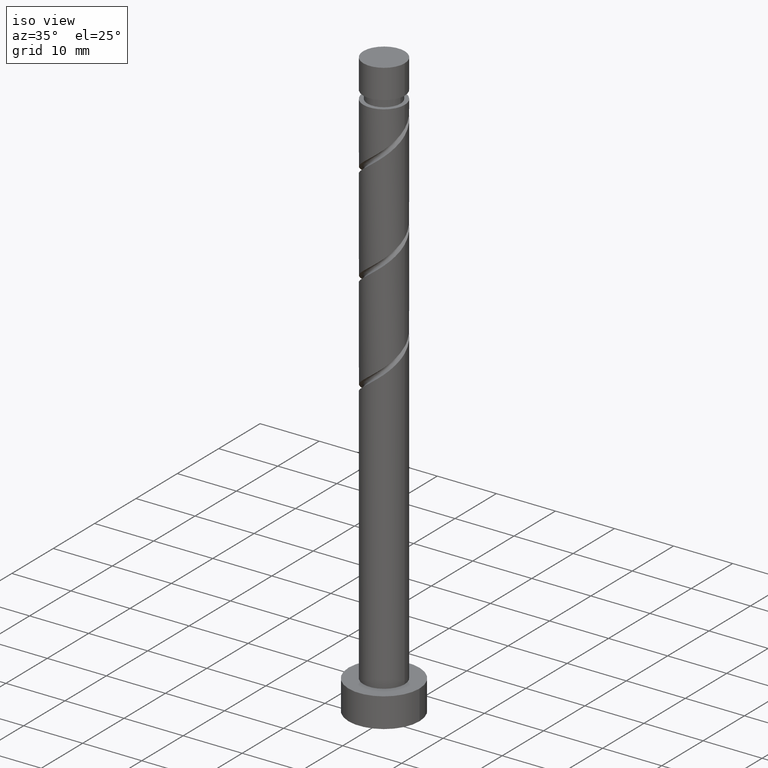
[diagram: clean part render]
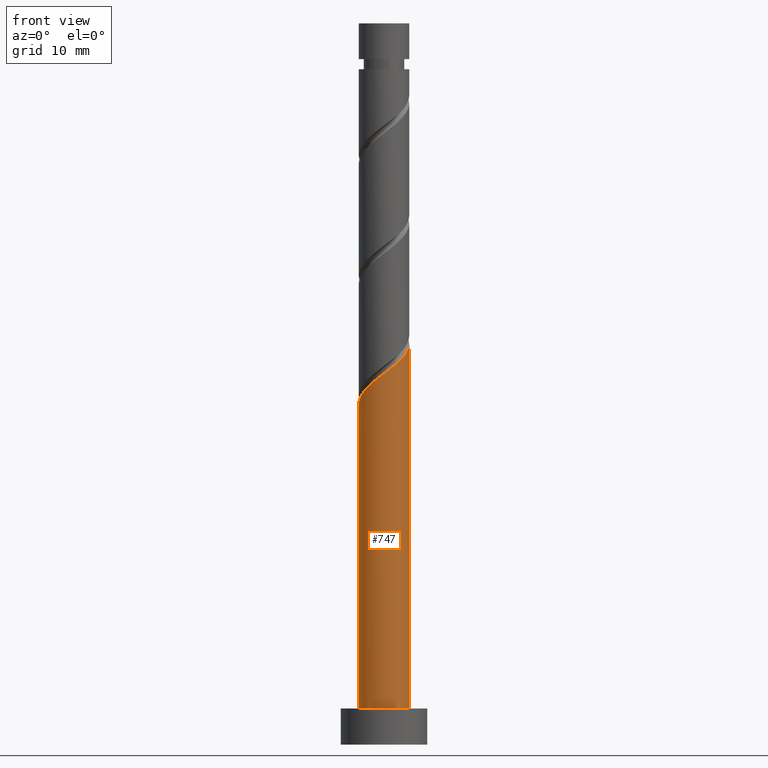
[diagram: tour spotlight — one face highlighted and labeled with its STEP entity id]
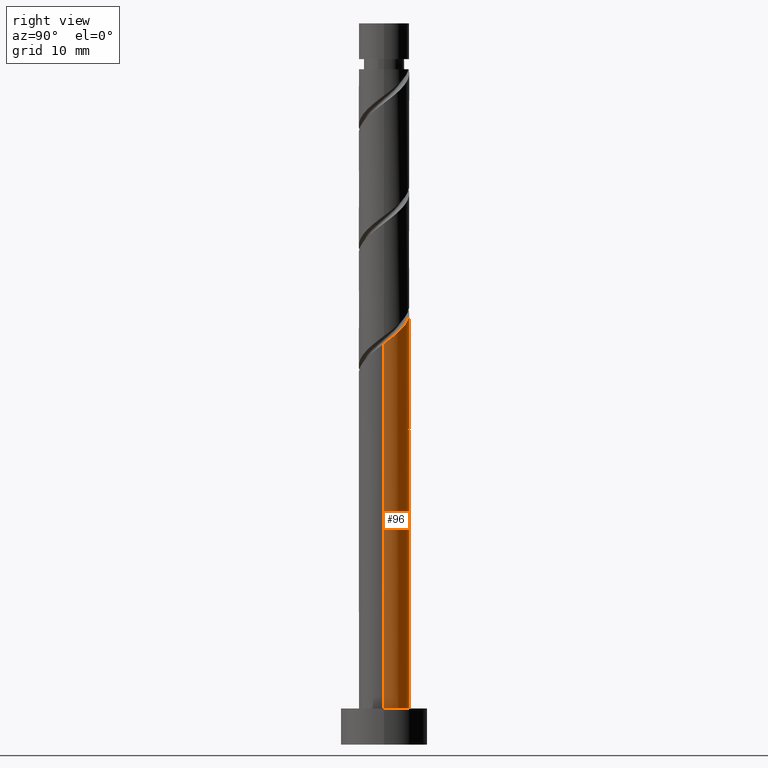
[diagram: tour spotlight — one face highlighted and labeled with its STEP entity id]
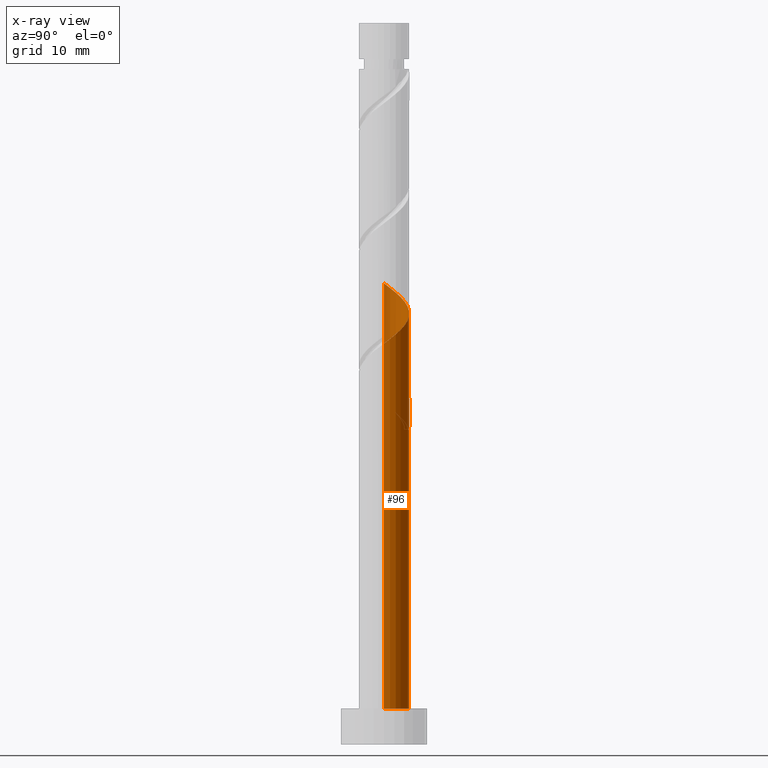
[diagram: x-ray of the same camera — body ghosted, this tour face saturated]
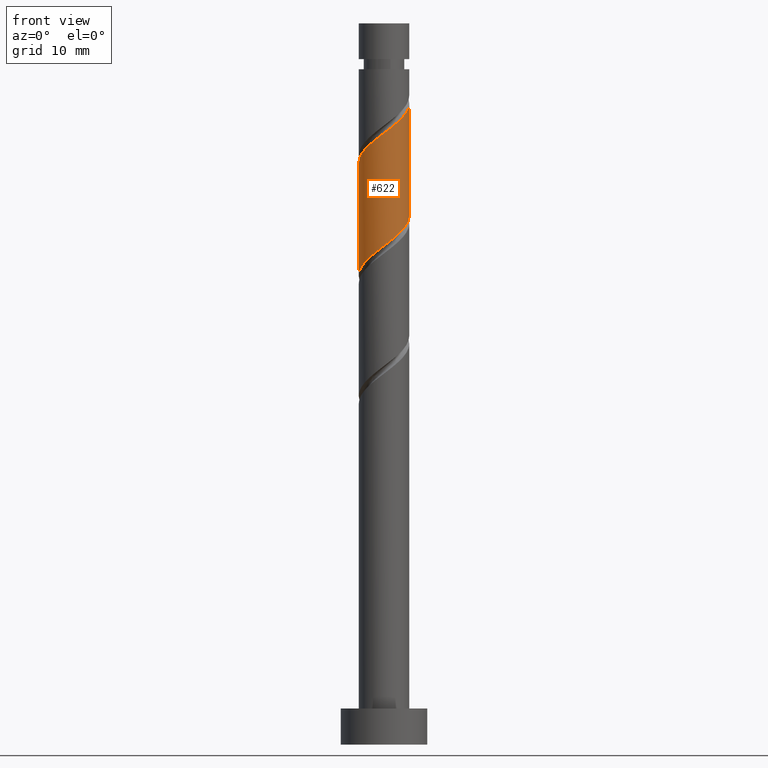
[diagram: tour spotlight — one face highlighted and labeled with its STEP entity id]
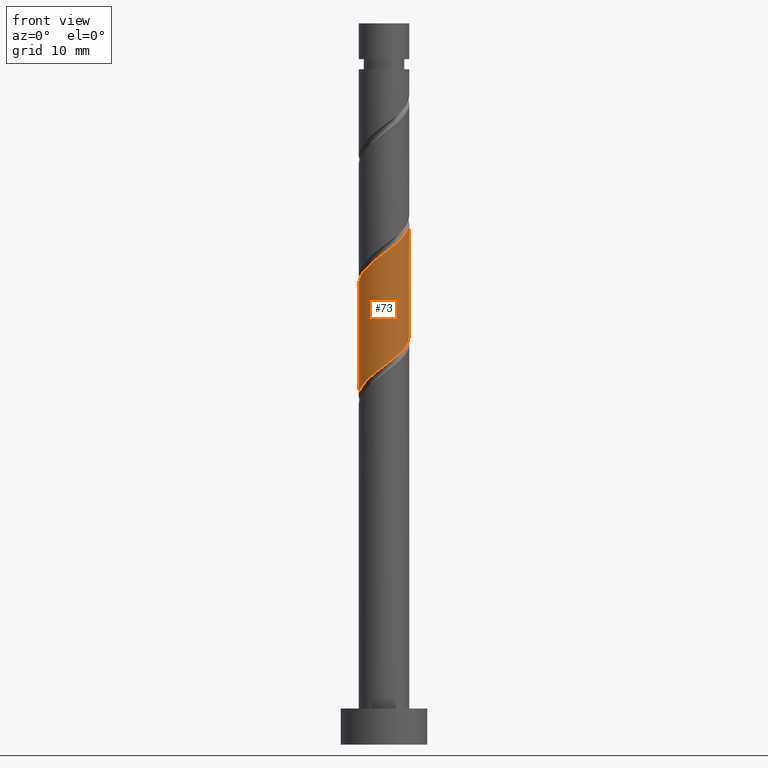
[diagram: tour spotlight — one face highlighted and labeled with its STEP entity id]
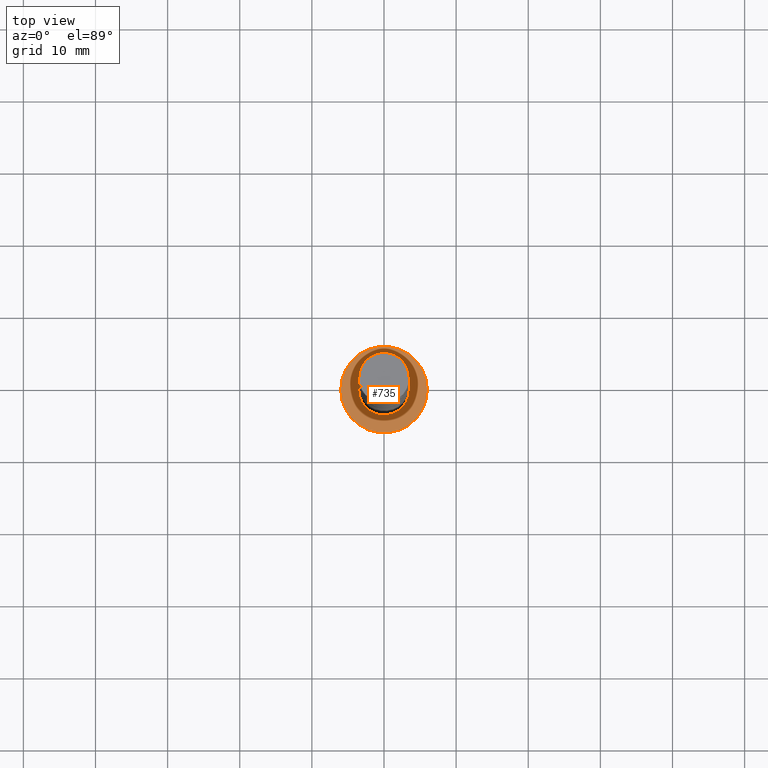
[diagram: tour spotlight — one face highlighted and labeled with its STEP entity id]
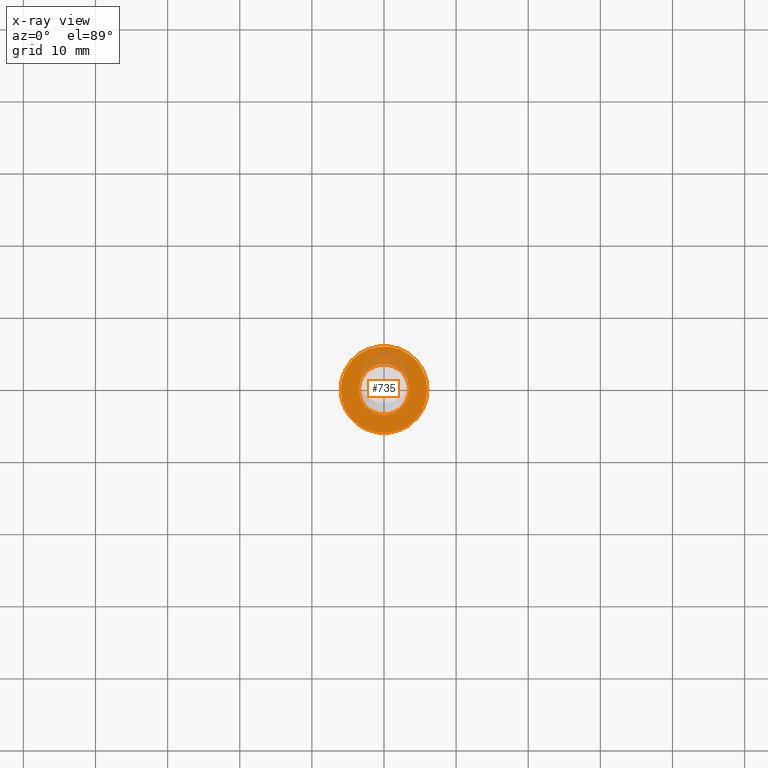
[diagram: x-ray of the same camera — body ghosted, this tour face saturated]
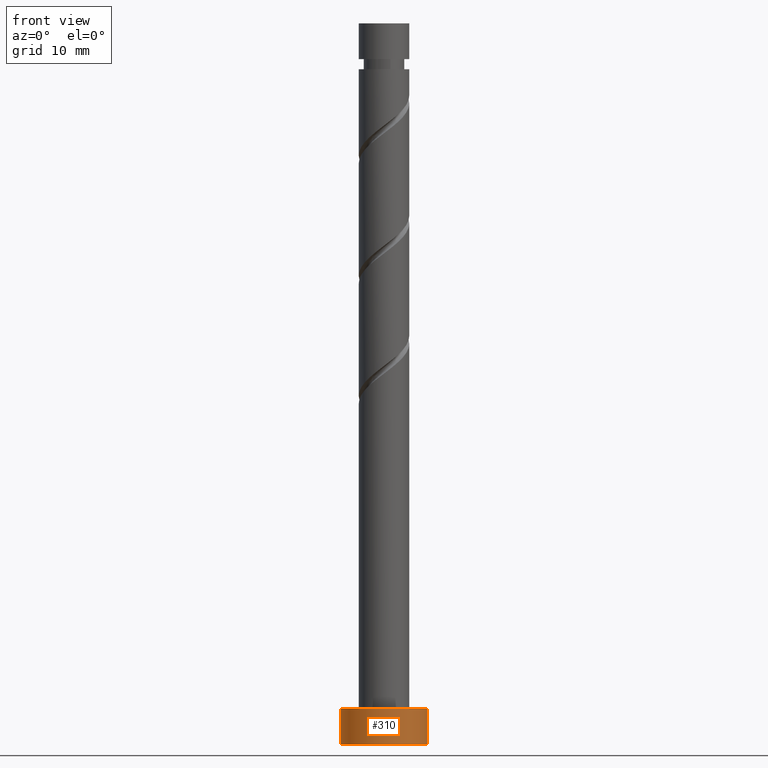
[diagram: tour spotlight — one face highlighted and labeled with its STEP entity id]
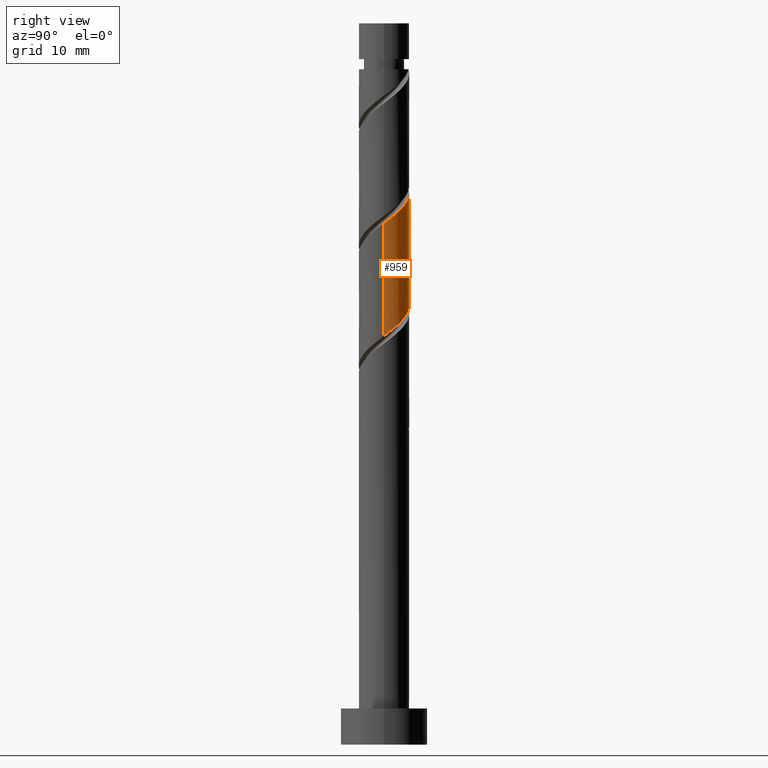
[diagram: tour spotlight — one face highlighted and labeled with its STEP entity id]
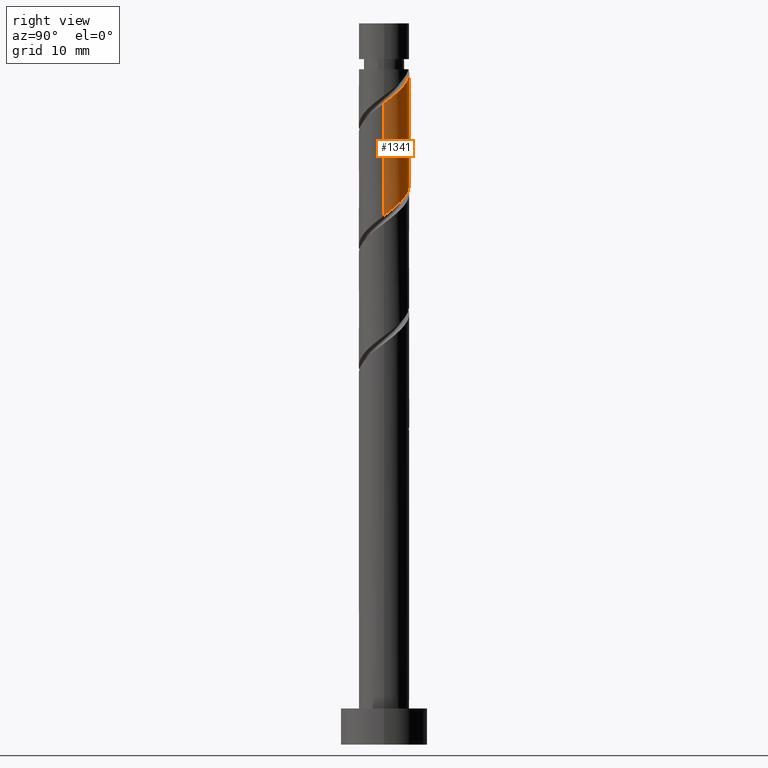
[diagram: tour spotlight — one face highlighted and labeled with its STEP entity id]
A machine part: a face-by-face anatomy tour. The part has 21 B-rep faces; the first image is the clean iso view, then the 8 largest visible faces are spotlighted one at a time (largest first), each with its STEP entity span.

Face 1 — front view, entity #747. In plain terms, the highlighted cylindrical surface (edge-blend (fillet) strip) has radius 3.5 mm, axis along (-0, -0, -1).
Definition (entity closure, byte-faithful):
#36 = DIRECTION ( 'NONE',  ( 1.000000000000000000, 0.000000000000000000, 0.000000000000000000 ) ) ;
#59 = CARTESIAN_POINT ( 'NONE',  ( 3.500000000000000000, 4.286263797015736595E-16, 5.000000000000000000 ) ) ;
#71 = CARTESIAN_POINT ( 'NONE',  ( -3.500000000000004441, 2.098924799838566833E-15, 47.28085234297711281 ) ) ;
#133 = CARTESIAN_POINT ( 'NONE',  ( 0.000000000000000000, 0.000000000000000000, 5.000000000000000000 ) ) ;
#142 = DIRECTION ( 'NONE',  ( -0.000000000000000000, -0.000000000000000000, -1.000000000000000000 ) ) ;
#179 = CYLINDRICAL_SURFACE ( 'NONE', #1176, 3.500000000000000000 ) ;
#194 = CARTESIAN_POINT ( 'NONE',  ( -1.671218283206728161, -3.075228357354227615, 50.12652204611401174 ) ) ;
#197 = CARTESIAN_POINT ( 'NONE',  ( -3.498835021510415366, -0.09029669015107097407, 47.34874426833622607 ) ) ;
#211 = CARTESIAN_POINT ( 'NONE',  ( 2.353940726802703498, -2.662673525845816069, 53.36726278685475933 ) ) ;
#244 = LINE ( 'NONE', #778, #951 ) ;
#294 = CARTESIAN_POINT ( 'NONE',  ( -3.500000000000000000, 0.000000000000000000, 5.000000000000000000 ) ) ;
#300 = CARTESIAN_POINT ( 'NONE',  ( -2.622221531993311316, -2.318179077886494799, 49.20059612018808792 ) ) ;
#305 = VERTEX_POINT ( 'NONE', #294 ) ;
#323 = ORIENTED_EDGE ( 'NONE', *, *, #392, .F. ) ;
#392 = EDGE_CURVE ( 'NONE', #713, #1012, #431, .T. ) ;
#403 = CARTESIAN_POINT ( 'NONE',  ( -3.500000000000004441, -0.04515586016207416564, 47.31486971690945609 ) ) ;
#413 = CARTESIAN_POINT ( 'NONE',  ( 0.09168966214459792208, -3.552810191439509602, 51.51541093500291879 ) ) ;
#420 = CARTESIAN_POINT ( 'NONE',  ( -3.482913278768110299, -0.7072357054910398677, 47.81170723129919509 ) ) ;
#427 = CARTESIAN_POINT ( 'NONE',  ( 3.500000000000005329, -0.5706903013716002615, 55.18426616394480533 ) ) ;
#431 =( BOUNDED_CURVE ( )  B_SPLINE_CURVE ( 2, ( #71, #403, #197, #420, #862, #1342, #300, #1231, #194, #1348, #1463, #413, #758, #888, #697, #211, #797, #1401, #670, #427, #909 ),
 .UNSPECIFIED., .F., .T. ) 
 B_SPLINE_CURVE_WITH_KNOTS ( ( 3, 2, 2, 2, 2, 2, 2, 2, 2, 2, 3 ),
 ( 0.05452480538552909733, 0.05555555555555558023, 0.06944444444444441977, 0.08333333333333337034, 0.09722222222222220989, 0.1111111111111111605, 0.1250000000000000000, 0.1388888888888888395, 0.1527777777777777901, 0.1666666666666666297, 0.1795248053855290904 ),
 .UNSPECIFIED. ) 
 CURVE ( )  GEOMETRIC_REPRESENTATION_ITEM ( )  RATIONAL_B_SPLINE_CURVE ( ( 0.9071930855141254746, 0.9080659294509730861, 0.9090909090909131685, 0.8952797754656475204, 0.9090909090909131685, 0.8952797754656475204, 0.9090909090909131685, 0.8952797754656475204, 0.9090909090909131685, 0.8952797754656475204, 0.9090909090909131685, 0.8952797754656475204, 0.9090909090909131685, 0.8952797754656475204, 0.9090909090909131685, 0.8952797754656475204, 0.9090909090909131685, 0.8952797754656475204, 0.9090909090909131685, 0.8963047551055876028, 0.9071930855141254746 ) ) 
 REPRESENTATION_ITEM ( '' )  );
#521 = DIRECTION ( 'NONE',  ( -1.000000000000000000, 0.000000000000000000, 0.000000000000000000 ) ) ;
#583 = EDGE_LOOP ( 'NONE', ( #771, #323, #1037, #803 ) ) ;
#592 = CARTESIAN_POINT ( 'NONE',  ( -3.500000000000004885, 2.098924799838566833E-15, 47.28085234297711281 ) ) ;
#643 = VERTEX_POINT ( 'NONE', #59 ) ;
#670 = CARTESIAN_POINT ( 'NONE',  ( 3.318712737967944637, -1.111820922113509802, 54.75615167574363795 ) ) ;
#689 = CARTESIAN_POINT ( 'NONE',  ( 3.500000000000004885, -2.106394283112013589E-15, 55.61418567631044851 ) ) ;
#697 = CARTESIAN_POINT ( 'NONE',  ( 1.827616738303687427, -2.984931667203157613, 52.90429982389177610 ) ) ;
#713 = VERTEX_POINT ( 'NONE', #592 ) ;
#747 = ADVANCED_FACE ( 'NONE', ( #1462 ), #179, .T. ) ;
#758 = CARTESIAN_POINT ( 'NONE',  ( 0.6964912059746344308, -3.430000000000003713, 51.97837389796585228 ) ) ;
#763 = DIRECTION ( 'NONE',  ( -0.000000000000000000, -0.000000000000000000, -1.000000000000000000 ) ) ;
#771 = ORIENTED_EDGE ( 'NONE', *, *, #1056, .F. ) ;
#778 = CARTESIAN_POINT ( 'NONE',  ( -3.500000000000000000, 0.000000000000000000, 100.0000000000000000 ) ) ;
#797 = CARTESIAN_POINT ( 'NONE',  ( 2.738304719242937502, -2.179836522441966906, 53.83022574981769992 ) ) ;
#803 = ORIENTED_EDGE ( 'NONE', *, *, #1424, .T. ) ;
#840 = VECTOR ( 'NONE', #1190, 1000.000000000000000 ) ;
#862 = CARTESIAN_POINT ( 'NONE',  ( -3.256946164153339485, -1.281523188946214642, 48.27467019426214989 ) ) ;
#888 = CARTESIAN_POINT ( 'NONE',  ( 1.301292749804669358, -3.307189808560500044, 52.44133686092882840 ) ) ;
#909 = CARTESIAN_POINT ( 'NONE',  ( 3.500000000000004441, -2.106394283112013589E-15, 55.61418567631044851 ) ) ;
#923 = AXIS2_PLACEMENT_3D ( 'NONE', #133, #1289, #36 ) ;
#951 = VECTOR ( 'NONE', #142, 1000.000000000000000 ) ;
#1012 = VERTEX_POINT ( 'NONE', #689 ) ;
#1037 = ORIENTED_EDGE ( 'NONE', *, *, #1456, .T. ) ;
#1056 = EDGE_CURVE ( 'NONE', #1012, #643, #1407, .T. ) ;
#1176 = AXIS2_PLACEMENT_3D ( 'NONE', #1328, #763, #521 ) ;
#1190 = DIRECTION ( 'NONE',  ( -0.000000000000000000, -0.000000000000000000, -1.000000000000000000 ) ) ;
#1231 = CARTESIAN_POINT ( 'NONE',  ( -2.213464014448051742, -2.780547483371603068, 49.66355908315103562 ) ) ;
#1289 = DIRECTION ( 'NONE',  ( 0.000000000000000000, 0.000000000000000000, 1.000000000000000000 ) ) ;
#1303 = CARTESIAN_POINT ( 'NONE',  ( 3.500000000000000000, 4.286263797015736595E-16, 100.0000000000000000 ) ) ;
#1328 = CARTESIAN_POINT ( 'NONE',  ( 0.000000000000000000, 0.000000000000000000, 100.0000000000000000 ) ) ;
#1342 = CARTESIAN_POINT ( 'NONE',  ( -3.030979049538570447, -1.855810672401390082, 48.73763315722511891 ) ) ;
#1348 = CARTESIAN_POINT ( 'NONE',  ( -1.128972551965404358, -3.369909231336856159, 50.58948500907698076 ) ) ;
#1401 = CARTESIAN_POINT ( 'NONE',  ( 3.122668711683168841, -1.696999519038119963, 54.29318871278069025 ) ) ;
#1407 = LINE ( 'NONE', #1303, #840 ) ;
#1424 = EDGE_CURVE ( 'NONE', #305, #643, #1445, .T. ) ;
#1445 = CIRCLE ( 'NONE', #923, 3.500000000000000000 ) ;
#1456 = EDGE_CURVE ( 'NONE', #713, #305, #244, .T. ) ;
#1462 = FACE_OUTER_BOUND ( 'NONE', #583, .T. ) ;
#1463 = CARTESIAN_POINT ( 'NONE',  ( -0.5186414449104030933, -3.461359711388181548, 51.05244797203992846 ) ) ;

Face 2 — right view, entity #96. An x-ray twin of the same camera follows (body ghosted, this face saturated) — the face is partly hidden behind the body. In plain terms, the highlighted cylindrical surface (edge-blend (fillet) strip) has radius 3.5 mm, axis along (-0, -0, -1).
Definition (entity closure, byte-faithful):
#4 = CARTESIAN_POINT ( 'NONE',  ( 0.6964912059746353190, 3.429999999999999716, 43.64504056463253079 ) ) ;
#10 = CARTESIAN_POINT ( 'NONE',  ( -0.6964912059746339867, 3.430000000000003713, 60.31170723129918088 ) ) ;
#21 = CARTESIAN_POINT ( 'NONE',  ( -2.738304719242937502, 2.179836522441966906, 62.16355908315104983 ) ) ;
#27 = CARTESIAN_POINT ( 'NONE',  ( 2.213464014448052186, 2.780547483371603068, 57.99689241648439264 ) ) ;
#47 = ORIENTED_EDGE ( 'NONE', *, *, #1056, .T. ) ;
#59 = CARTESIAN_POINT ( 'NONE',  ( 3.500000000000000000, 4.286263797015736595E-16, 5.000000000000000000 ) ) ;
#81 = CARTESIAN_POINT ( 'NONE',  ( -2.353940726802704830, 2.662673525845816069, 45.03392945352143073 ) ) ;
#84 = CARTESIAN_POINT ( 'NONE',  ( 0.000000000000000000, 0.000000000000000000, 100.0000000000000000 ) ) ;
#88 = CARTESIAN_POINT ( 'NONE',  ( -1.827616738303687427, 2.984931667203157168, 44.57096649055843329 ) ) ;
#96 = ADVANCED_FACE ( 'NONE', ( #647 ), #1117, .T. ) ;
#108 = CARTESIAN_POINT ( 'NONE',  ( -3.500000000000006217, 0.5706903013715948214, 63.51759949727815524 ) ) ;
#142 = DIRECTION ( 'NONE',  ( -0.000000000000000000, -0.000000000000000000, -1.000000000000000000 ) ) ;
#153 = CARTESIAN_POINT ( 'NONE',  ( -0.6964912059746339867, 3.430000000000004157, 43.64504056463253079 ) ) ;
#178 = ORIENTED_EDGE ( 'NONE', *, *, #669, .F. ) ;
#187 =( BOUNDED_CURVE ( )  B_SPLINE_CURVE ( 2, ( #1270, #568, #1049, #931, #1364, #1278, #540, #27, #1041, #214, #433, #782, #10, #464, #551, #1261, #21, #1254, #224, #108, #249 ),
 .UNSPECIFIED., .F., .T. ) 
 B_SPLINE_CURVE_WITH_KNOTS ( ( 3, 2, 2, 2, 2, 2, 2, 2, 2, 2, 3 ),
 ( 0.1795248053855290904, 0.1805555555555555802, 0.1944444444444444198, 0.2083333333333333703, 0.2222222222222222099, 0.2361111111111111605, 0.2500000000000000000, 0.2638888888888888395, 0.2777777777777777901, 0.2916666666666666297, 0.3045248053855291737 ),
 .UNSPECIFIED. ) 
 CURVE ( )  GEOMETRIC_REPRESENTATION_ITEM ( )  RATIONAL_B_SPLINE_CURVE ( ( 0.9071930855141254746, 0.9080659294509730861, 0.9090909090909131685, 0.8952797754656475204, 0.9090909090909131685, 0.8952797754656475204, 0.9090909090909131685, 0.8952797754656475204, 0.9090909090909131685, 0.8952797754656475204, 0.9090909090909131685, 0.8952797754656475204, 0.9090909090909131685, 0.8952797754656475204, 0.9090909090909131685, 0.8952797754656475204, 0.9090909090909131685, 0.8952797754656475204, 0.9090909090909131685, 0.8963047551055874917, 0.9071930855141256966 ) ) 
 REPRESENTATION_ITEM ( '' )  );
#214 = CARTESIAN_POINT ( 'NONE',  ( 1.128972551965406579, 3.369909231336854827, 58.92281834241030225 ) ) ;
#224 = CARTESIAN_POINT ( 'NONE',  ( -3.318712737967945525, 1.111820922113508914, 63.08948500907697365 ) ) ;
#244 = LINE ( 'NONE', #778, #951 ) ;
#249 = CARTESIAN_POINT ( 'NONE',  ( -3.500000000000004885, 2.098924799838566833E-15, 63.94751900964377711 ) ) ;
#269 = EDGE_CURVE ( 'NONE', #667, #713, #636, .T. ) ;
#294 = CARTESIAN_POINT ( 'NONE',  ( -3.500000000000000000, 0.000000000000000000, 5.000000000000000000 ) ) ;
#305 = VERTEX_POINT ( 'NONE', #294 ) ;
#313 = EDGE_LOOP ( 'NONE', ( #1428, #47, #437, #609, #980, #1310, #1077, #178 ) ) ;
#315 = CARTESIAN_POINT ( 'NONE',  ( -3.500000000000004441, 2.098924799838566833E-15, 47.28085234297711281 ) ) ;
#324 = CARTESIAN_POINT ( 'NONE',  ( 0.000000000000000000, 0.000000000000000000, 43.64504056463253079 ) ) ;
#347 = CARTESIAN_POINT ( 'NONE',  ( -2.213464014448048189, 2.780547483371599071, 45.95985537944736166 ) ) ;
#355 = EDGE_CURVE ( 'NONE', #643, #305, #791, .T. ) ;
#433 = CARTESIAN_POINT ( 'NONE',  ( 0.5186414449104053137, 3.461359711388181104, 59.38578130537326416 ) ) ;
#437 = ORIENTED_EDGE ( 'NONE', *, *, #355, .T. ) ;
#443 = CARTESIAN_POINT ( 'NONE',  ( -3.482913278768105414, 0.7072357054910396457, 47.81170723129920930 ) ) ;
#464 = CARTESIAN_POINT ( 'NONE',  ( -1.301292749804670690, 3.307189808560499600, 60.77467019426217121 ) ) ;
#474 = CARTESIAN_POINT ( 'NONE',  ( -3.500000000000000000, 0.000000000000000000, 100.0000000000000000 ) ) ;
#477 = CARTESIAN_POINT ( 'NONE',  ( -0.5186414449104015389, 3.461359711388177107, 44.57096649055845461 ) ) ;
#540 = CARTESIAN_POINT ( 'NONE',  ( 2.622221531993310872, 2.318179077886496131, 57.53392945352140941 ) ) ;
#551 = CARTESIAN_POINT ( 'NONE',  ( -1.827616738303687427, 2.984931667203157168, 61.23763315722511891 ) ) ;
#562 = CARTESIAN_POINT ( 'NONE',  ( -3.030979049538566450, 1.855810672401388528, 46.88578130537328548 ) ) ;
#568 = CARTESIAN_POINT ( 'NONE',  ( 3.500000000000004441, 0.04515586016207406850, 55.64820305024280600 ) ) ;
#578 = CIRCLE ( 'NONE', #604, 3.500000000000000000 ) ;
#592 = CARTESIAN_POINT ( 'NONE',  ( -3.500000000000004885, 2.098924799838566833E-15, 47.28085234297711281 ) ) ;
#602 = CARTESIAN_POINT ( 'NONE',  ( 0.6964912059746352080, 3.429999999999999716, 43.64504056463253079 ) ) ;
#604 = AXIS2_PLACEMENT_3D ( 'NONE', #324, #774, #924 ) ;
#609 = ORIENTED_EDGE ( 'NONE', *, *, #1456, .F. ) ;
#610 = CARTESIAN_POINT ( 'NONE',  ( 0.09168966214459955966, 3.552810191439504717, 44.10800352759549270 ) ) ;
#636 =( BOUNDED_CURVE ( )  B_SPLINE_CURVE ( 2, ( #850, #1459, #88, #81, #1134, #743, #856, #1107, #315 ),
 .UNSPECIFIED., .F., .T. ) 
 B_SPLINE_CURVE_WITH_KNOTS ( ( 3, 2, 2, 2, 3 ),
 ( 0.000000000000000000, 0.01388888888888883955, 0.02777777777777779011, 0.04166666666666662966, 0.05452480538552909733 ),
 .UNSPECIFIED. ) 
 CURVE ( )  GEOMETRIC_REPRESENTATION_ITEM ( )  RATIONAL_B_SPLINE_CURVE ( ( 0.9090909090909131685, 0.8952797754656475204, 0.9090909090909131685, 0.8952797754656475204, 0.9090909090909131685, 0.8952797754656475204, 0.9090909090909131685, 0.8963047551055876028, 0.9071930855141254746 ) ) 
 REPRESENTATION_ITEM ( '' )  );
#643 = VERTEX_POINT ( 'NONE', #59 ) ;
#644 = DIRECTION ( 'NONE',  ( 1.000000000000000000, 0.000000000000000000, 0.000000000000000000 ) ) ;
#647 = FACE_OUTER_BOUND ( 'NONE', #313, .T. ) ;
#667 = VERTEX_POINT ( 'NONE', #153 ) ;
#669 = EDGE_CURVE ( 'NONE', #935, #722, #936, .T. ) ;
#689 = CARTESIAN_POINT ( 'NONE',  ( 3.500000000000004885, -2.106394283112013589E-15, 55.61418567631044851 ) ) ;
#713 = VERTEX_POINT ( 'NONE', #592 ) ;
#722 = VERTEX_POINT ( 'NONE', #945 ) ;
#733 = CARTESIAN_POINT ( 'NONE',  ( -1.128972551965402138, 3.369909231336851718, 45.03392945352143073 ) ) ;
#743 = CARTESIAN_POINT ( 'NONE',  ( -3.122668711683168841, 1.696999519038119297, 45.95985537944734034 ) ) ;
#774 = DIRECTION ( 'NONE',  ( 0.000000000000000000, -0.000000000000000000, -1.000000000000000000 ) ) ;
#778 = CARTESIAN_POINT ( 'NONE',  ( -3.500000000000000000, 0.000000000000000000, 100.0000000000000000 ) ) ;
#782 = CARTESIAN_POINT ( 'NONE',  ( -0.09168966214459894903, 3.552810191439509602, 59.84874426833624028 ) ) ;
#791 = CIRCLE ( 'NONE', #989, 3.500000000000000000 ) ;
#804 = CARTESIAN_POINT ( 'NONE',  ( -3.500000000000004885, 2.098924799838566833E-15, 63.94751900964377711 ) ) ;
#809 = CARTESIAN_POINT ( 'NONE',  ( -3.499999999999998668, -1.299690089579760984E-15, 48.34256211962127736 ) ) ;
#840 = VECTOR ( 'NONE', #1190, 1000.000000000000000 ) ;
#850 = CARTESIAN_POINT ( 'NONE',  ( -0.6964912059746339867, 3.430000000000004157, 43.64504056463253079 ) ) ;
#856 = CARTESIAN_POINT ( 'NONE',  ( -3.318712737967945525, 1.111820922113508914, 46.42281834241030936 ) ) ;
#872 = DIRECTION ( 'NONE',  ( -1.000000000000000000, 0.000000000000000000, 0.000000000000000000 ) ) ;
#876 = DIRECTION ( 'NONE',  ( 0.000000000000000000, 0.000000000000000000, 1.000000000000000000 ) ) ;
#885 = AXIS2_PLACEMENT_3D ( 'NONE', #84, #994, #872 ) ;
#912 = CARTESIAN_POINT ( 'NONE',  ( -1.671218283206725053, 3.075228357354224062, 45.49689241648437843 ) ) ;
#924 = DIRECTION ( 'NONE',  ( -1.000000000000000000, 0.000000000000000000, 0.000000000000000000 ) ) ;
#931 = CARTESIAN_POINT ( 'NONE',  ( 3.482913278768110299, 0.7072357054910393126, 56.14504056463253079 ) ) ;
#935 = VERTEX_POINT ( 'NONE', #804 ) ;
#936 = LINE ( 'NONE', #474, #949 ) ;
#945 = CARTESIAN_POINT ( 'NONE',  ( -3.499999999999998668, -1.299690089579760984E-15, 48.34256211962127736 ) ) ;
#949 = VECTOR ( 'NONE', #1292, 1000.000000000000000 ) ;
#951 = VECTOR ( 'NONE', #142, 1000.000000000000000 ) ;
#980 = ORIENTED_EDGE ( 'NONE', *, *, #269, .F. ) ;
#989 = AXIS2_PLACEMENT_3D ( 'NONE', #1126, #876, #644 ) ;
#994 = DIRECTION ( 'NONE',  ( -0.000000000000000000, -0.000000000000000000, -1.000000000000000000 ) ) ;
#1012 = VERTEX_POINT ( 'NONE', #689 ) ;
#1033 = CARTESIAN_POINT ( 'NONE',  ( -2.622221531993306431, 2.318179077886493467, 46.42281834241031646 ) ) ;
#1041 = CARTESIAN_POINT ( 'NONE',  ( 1.671218283206729049, 3.075228357354227615, 58.45985537944734034 ) ) ;
#1049 = CARTESIAN_POINT ( 'NONE',  ( 3.498835021510415366, 0.09029669015107134877, 55.68207760166956177 ) ) ;
#1056 = EDGE_CURVE ( 'NONE', #1012, #643, #1407, .T. ) ;
#1077 = ORIENTED_EDGE ( 'NONE', *, *, #1216, .F. ) ;
#1107 = CARTESIAN_POINT ( 'NONE',  ( -3.500000000000005329, 0.5706903013715980411, 46.85093283061148384 ) ) ;
#1117 = CYLINDRICAL_SURFACE ( 'NONE', #885, 3.500000000000000000 ) ;
#1126 = CARTESIAN_POINT ( 'NONE',  ( 0.000000000000000000, 0.000000000000000000, 5.000000000000000000 ) ) ;
#1130 = EDGE_CURVE ( 'NONE', #1012, #935, #187, .T. ) ;
#1134 = CARTESIAN_POINT ( 'NONE',  ( -2.738304719242937502, 2.179836522441966906, 45.49689241648437843 ) ) ;
#1155 = CARTESIAN_POINT ( 'NONE',  ( -3.498835021510410481, 0.09029669015107168184, 48.27467019426214279 ) ) ;
#1174 = EDGE_CURVE ( 'NONE', #667, #1200, #578, .T. ) ;
#1190 = DIRECTION ( 'NONE',  ( -0.000000000000000000, -0.000000000000000000, -1.000000000000000000 ) ) ;
#1200 = VERTEX_POINT ( 'NONE', #4 ) ;
#1216 = EDGE_CURVE ( 'NONE', #722, #1200, #1222, .T. ) ;
#1222 =( BOUNDED_CURVE ( )  B_SPLINE_CURVE ( 2, ( #809, #1397, #1155, #443, #1375, #562, #1033, #347, #912, #733, #477, #610, #602 ),
 .UNSPECIFIED., .F., .T. ) 
 B_SPLINE_CURVE_WITH_KNOTS ( ( 3, 2, 2, 2, 2, 2, 3 ),
 ( 0.9295248053855290626, 0.9305555555555555802, 0.9444444444444444198, 0.9583333333333333703, 0.9722222222222222099, 0.9861111111111111605, 1.000000000000000000 ),
 .UNSPECIFIED. ) 
 CURVE ( )  GEOMETRIC_REPRESENTATION_ITEM ( )  RATIONAL_B_SPLINE_CURVE ( ( 0.9071930855141197014, 0.9080659294509674240, 0.9090909090909075063, 0.8952797754656419693, 0.9090909090909075063, 0.8952797754656419693, 0.9090909090909075063, 0.8952797754656419693, 0.9090909090909075063, 0.8952797754656419693, 0.9090909090909075063, 0.8952797754656419693, 0.9090909090909075063 ) ) 
 REPRESENTATION_ITEM ( '' )  );
#1254 = CARTESIAN_POINT ( 'NONE',  ( -3.122668711683168841, 1.696999519038119297, 62.62652204611401885 ) ) ;
#1261 = CARTESIAN_POINT ( 'NONE',  ( -2.353940726802704830, 2.662673525845816069, 61.70059612018809503 ) ) ;
#1270 = CARTESIAN_POINT ( 'NONE',  ( 3.500000000000004441, -2.106394283112013589E-15, 55.61418567631044851 ) ) ;
#1278 = CARTESIAN_POINT ( 'NONE',  ( 3.030979049538571779, 1.855810672401388084, 57.07096649055844750 ) ) ;
#1292 = DIRECTION ( 'NONE',  ( -0.000000000000000000, -0.000000000000000000, -1.000000000000000000 ) ) ;
#1303 = CARTESIAN_POINT ( 'NONE',  ( 3.500000000000000000, 4.286263797015736595E-16, 100.0000000000000000 ) ) ;
#1310 = ORIENTED_EDGE ( 'NONE', *, *, #1174, .T. ) ;
#1364 = CARTESIAN_POINT ( 'NONE',  ( 3.256946164153339485, 1.281523188946213532, 56.60800352759547849 ) ) ;
#1375 = CARTESIAN_POINT ( 'NONE',  ( -3.256946164153335044, 1.281523188946213532, 47.34874426833622607 ) ) ;
#1397 = CARTESIAN_POINT ( 'NONE',  ( -3.499999999999998668, 0.04515586016207342318, 48.30854474568891277 ) ) ;
#1407 = LINE ( 'NONE', #1303, #840 ) ;
#1428 = ORIENTED_EDGE ( 'NONE', *, *, #1130, .F. ) ;
#1456 = EDGE_CURVE ( 'NONE', #713, #305, #244, .T. ) ;
#1459 = CARTESIAN_POINT ( 'NONE',  ( -1.301292749804670690, 3.307189808560499600, 44.10800352759550691 ) ) ;

Face 3 — front view, entity #622. In plain terms, the highlighted cylindrical surface (edge-blend (fillet) strip) has radius 3.5 mm, axis along (-0, -0, -1).
Definition (entity closure, byte-faithful):
#16 = CARTESIAN_POINT ( 'NONE',  ( 2.622221531993305987, -2.318179077886494355, 71.42281834241030936 ) ) ;
#23 = CARTESIAN_POINT ( 'NONE',  ( -1.301292749804670690, -3.307189808560494715, 68.18207760166957598 ) ) ;
#65 = VECTOR ( 'NONE', #1403, 1000.000000000000000 ) ;
#79 = CARTESIAN_POINT ( 'NONE',  ( 3.318712737967944637, -1.111820922113509802, 88.08948500907699497 ) ) ;
#116 = EDGE_CURVE ( 'NONE', #272, #1028, #232, .T. ) ;
#121 = CARTESIAN_POINT ( 'NONE',  ( 3.482913278768105414, -0.7072357054910403118, 72.81170723129923772 ) ) ;
#126 = VERTEX_POINT ( 'NONE', #808 ) ;
#127 = CARTESIAN_POINT ( 'NONE',  ( 3.030979049538565118, -1.855810672401390526, 71.88578130537329969 ) ) ;
#129 = CARTESIAN_POINT ( 'NONE',  ( -3.500000000000000000, 0.000000000000000000, 100.0000000000000000 ) ) ;
#191 = CARTESIAN_POINT ( 'NONE',  ( -3.256946164153339485, -1.281523188946214642, 81.60800352759549980 ) ) ;
#195 = CARTESIAN_POINT ( 'NONE',  ( 3.122668711683168841, -1.696999519038119963, 87.62652204611401885 ) ) ;
#210 = DIRECTION ( 'NONE',  ( -0.000000000000000000, -0.000000000000000000, -1.000000000000000000 ) ) ;
#230 = CARTESIAN_POINT ( 'NONE',  ( -3.499999999999998668, -1.299690089579760984E-15, 65.00922878628794876 ) ) ;
#232 = LINE ( 'NONE', #129, #65 ) ;
#256 = CARTESIAN_POINT ( 'NONE',  ( 0.000000000000000000, 0.000000000000000000, 100.0000000000000000 ) ) ;
#272 = VERTEX_POINT ( 'NONE', #1475 ) ;
#344 = CARTESIAN_POINT ( 'NONE',  ( -0.09168966214460079478, -3.552810191439505605, 69.10800352759549980 ) ) ;
#351 = CARTESIAN_POINT ( 'NONE',  ( 3.500000000000000000, 4.481689964068141110E-17, 73.34256211962129157 ) ) ;
#367 = DIRECTION ( 'NONE',  ( -0.000000000000000000, -0.000000000000000000, -1.000000000000000000 ) ) ;
#399 = CARTESIAN_POINT ( 'NONE',  ( -1.128972551965404358, -3.369909231336856159, 83.92281834241032357 ) ) ;
#415 = CARTESIAN_POINT ( 'NONE',  ( 3.500000000000002220, -0.5706903013716064788, 88.51759949727812682 ) ) ;
#426 = LINE ( 'NONE', #1141, #651 ) ;
#453 = CARTESIAN_POINT ( 'NONE',  ( 3.498835021510410925, -0.09029669015107281982, 73.27467019426215700 ) ) ;
#458 = AXIS2_PLACEMENT_3D ( 'NONE', #256, #367, #1084 ) ;
#461 = CARTESIAN_POINT ( 'NONE',  ( -1.827616738303686095, -2.984931667203152728, 67.71911463870661407 ) ) ;
#509 = CARTESIAN_POINT ( 'NONE',  ( -3.498835021510415366, -0.09029669015107097407, 80.68207760166956177 ) ) ;
#566 = CARTESIAN_POINT ( 'NONE',  ( -3.122668711683164844, -1.696999519038117521, 66.33022574981771413 ) ) ;
#607 = FACE_OUTER_BOUND ( 'NONE', #1323, .T. ) ;
#622 = ADVANCED_FACE ( 'NONE', ( #607 ), #623, .T. ) ;
#623 = CYLINDRICAL_SURFACE ( 'NONE', #458, 3.500000000000000000 ) ;
#625 = CARTESIAN_POINT ( 'NONE',  ( -3.030979049538570447, -1.855810672401390082, 82.07096649055847593 ) ) ;
#640 = CARTESIAN_POINT ( 'NONE',  ( -1.671218283206728161, -3.075228357354227615, 83.45985537944731902 ) ) ;
#651 = VECTOR ( 'NONE', #210, 1000.000000000000000 ) ;
#656 = CARTESIAN_POINT ( 'NONE',  ( 0.6964912059746344308, -3.430000000000003713, 85.31170723129918088 ) ) ;
#659 = CARTESIAN_POINT ( 'NONE',  ( 2.213464014448047745, -2.780547483371599071, 70.95985537944734745 ) ) ;
#668 = CARTESIAN_POINT ( 'NONE',  ( -3.500000000000001332, -0.5706903013715930451, 65.43914829865357774 ) ) ;
#679 = CARTESIAN_POINT ( 'NONE',  ( -3.318712737967940640, -1.111820922113505361, 65.86726278685473801 ) ) ;
#728 = ORIENTED_EDGE ( 'NONE', *, *, #116, .T. ) ;
#772 = CARTESIAN_POINT ( 'NONE',  ( 0.5186414449104012059, -3.461359711388177107, 69.57096649055844750 ) ) ;
#808 = CARTESIAN_POINT ( 'NONE',  ( 3.500000000000000000, 4.481689964068141110E-17, 73.34256211962129157 ) ) ;
#837 = EDGE_CURVE ( 'NONE', #126, #1028, #984, .T. ) ;
#858 = CARTESIAN_POINT ( 'NONE',  ( -0.5186414449104030933, -3.461359711388181548, 84.38578130537324284 ) ) ;
#864 = CARTESIAN_POINT ( 'NONE',  ( 2.353940726802703498, -2.662673525845816069, 86.70059612018810924 ) ) ;
#884 = CARTESIAN_POINT ( 'NONE',  ( -2.353940726802702610, -2.662673525845811184, 67.25615167574363795 ) ) ;
#917 = CARTESIAN_POINT ( 'NONE',  ( 1.128972551965401916, -3.369909231336850830, 70.03392945352143784 ) ) ;
#950 = EDGE_CURVE ( 'NONE', #1140, #126, #426, .T. ) ;
#958 = ORIENTED_EDGE ( 'NONE', *, *, #950, .F. ) ;
#979 = CARTESIAN_POINT ( 'NONE',  ( -2.622221531993311316, -2.318179077886494799, 82.53392945352143784 ) ) ;
#984 =( BOUNDED_CURVE ( )  B_SPLINE_CURVE ( 2, ( #351, #1006, #453, #121, #1249, #127, #16, #659, #1038, #917, #772, #344, #1281, #23, #461, #884, #1133, #566, #679, #668, #230 ),
 .UNSPECIFIED., .F., .T. ) 
 B_SPLINE_CURVE_WITH_KNOTS ( ( 3, 2, 2, 2, 2, 2, 2, 2, 2, 2, 3 ),
 ( 0.5545248053855291737, 0.5555555555555555802, 0.5694444444444444198, 0.5833333333333333703, 0.5972222222222222099, 0.6111111111111111605, 0.6250000000000000000, 0.6388888888888888395, 0.6527777777777777901, 0.6666666666666666297, 0.6795248053855291737 ),
 .UNSPECIFIED. ) 
 CURVE ( )  GEOMETRIC_REPRESENTATION_ITEM ( )  RATIONAL_B_SPLINE_CURVE ( ( 0.9071930855141199235, 0.9080659294509675350, 0.9090909090909075063, 0.8952797754656419693, 0.9090909090909075063, 0.8952797754656419693, 0.9090909090909075063, 0.8952797754656419693, 0.9090909090909075063, 0.8952797754656419693, 0.9090909090909075063, 0.8952797754656419693, 0.9090909090909075063, 0.8952797754656419693, 0.9090909090909075063, 0.8952797754656419693, 0.9090909090909075063, 0.8952797754656419693, 0.9090909090909075063, 0.8963047551055819406, 0.9071930855141199235 ) ) 
 REPRESENTATION_ITEM ( '' )  );
#1006 = CARTESIAN_POINT ( 'NONE',  ( 3.499999999999998668, -0.04515586016207951553, 73.30854474568893409 ) ) ;
#1013 = CARTESIAN_POINT ( 'NONE',  ( 3.500000000000004885, 2.390234647502993867E-15, 88.94751900964375579 ) ) ;
#1028 = VERTEX_POINT ( 'NONE', #1067 ) ;
#1038 = CARTESIAN_POINT ( 'NONE',  ( 1.671218283206725053, -3.075228357354224062, 70.49689241648435711 ) ) ;
#1067 = CARTESIAN_POINT ( 'NONE',  ( -3.499999999999998668, -1.299690089579760984E-15, 65.00922878628794876 ) ) ;
#1084 = DIRECTION ( 'NONE',  ( -1.000000000000000000, 0.000000000000000000, 0.000000000000000000 ) ) ;
#1110 = CARTESIAN_POINT ( 'NONE',  ( 1.301292749804669358, -3.307189808560500044, 85.77467019426218542 ) ) ;
#1116 = CARTESIAN_POINT ( 'NONE',  ( 1.827616738303687427, -2.984931667203157613, 86.23763315722507627 ) ) ;
#1133 = CARTESIAN_POINT ( 'NONE',  ( -2.738304719242933949, -2.179836522441962909, 66.79318871278067604 ) ) ;
#1140 = VERTEX_POINT ( 'NONE', #1013 ) ;
#1141 = CARTESIAN_POINT ( 'NONE',  ( 3.500000000000000000, 4.286263797015736595E-16, 100.0000000000000000 ) ) ;
#1209 =( BOUNDED_CURVE ( )  B_SPLINE_CURVE ( 2, ( #1444, #1466, #509, #1238, #191, #625, #979, #1454, #640, #399, #858, #1338, #656, #1110, #1116, #864, #1234, #195, #79, #415, #1350 ),
 .UNSPECIFIED., .F., .T. ) 
 B_SPLINE_CURVE_WITH_KNOTS ( ( 3, 2, 2, 2, 2, 2, 2, 2, 2, 2, 3 ),
 ( 0.5545248053855292847, 0.5555555555555555802, 0.5694444444444444198, 0.5833333333333332593, 0.5972222222222222099, 0.6111111111111111605, 0.6250000000000000000, 0.6388888888888888395, 0.6527777777777777901, 0.6666666666666667407, 0.6795248053855289516 ),
 .UNSPECIFIED. ) 
 CURVE ( )  GEOMETRIC_REPRESENTATION_ITEM ( )  RATIONAL_B_SPLINE_CURVE ( ( 0.9071930855141256966, 0.9080659294509733082, 0.9090909090909131685, 0.8952797754656475204, 0.9090909090909131685, 0.8952797754656475204, 0.9090909090909131685, 0.8952797754656475204, 0.9090909090909131685, 0.8952797754656475204, 0.9090909090909131685, 0.8952797754656475204, 0.9090909090909131685, 0.8952797754656475204, 0.9090909090909131685, 0.8952797754656475204, 0.9090909090909131685, 0.8952797754656475204, 0.9090909090909131685, 0.8963047551055878248, 0.9071930855141251415 ) ) 
 REPRESENTATION_ITEM ( '' )  );
#1234 = CARTESIAN_POINT ( 'NONE',  ( 2.738304719242937502, -2.179836522441966906, 87.16355908315104273 ) ) ;
#1238 = CARTESIAN_POINT ( 'NONE',  ( -3.482913278768110299, -0.7072357054910398677, 81.14504056463255210 ) ) ;
#1249 = CARTESIAN_POINT ( 'NONE',  ( 3.256946164153335044, -1.281523188946213532, 72.34874426833623318 ) ) ;
#1281 = CARTESIAN_POINT ( 'NONE',  ( -0.6964912059746346529, -3.429999999999998828, 68.64504056463249526 ) ) ;
#1297 = EDGE_CURVE ( 'NONE', #272, #1140, #1209, .T. ) ;
#1323 = EDGE_LOOP ( 'NONE', ( #958, #1352, #728, #1408 ) ) ;
#1338 = CARTESIAN_POINT ( 'NONE',  ( 0.09168966214459792208, -3.552810191439509602, 84.84874426833623318 ) ) ;
#1350 = CARTESIAN_POINT ( 'NONE',  ( 3.500000000000004885, 2.390234647502994261E-15, 88.94751900964375579 ) ) ;
#1352 = ORIENTED_EDGE ( 'NONE', *, *, #1297, .F. ) ;
#1403 = DIRECTION ( 'NONE',  ( -0.000000000000000000, -0.000000000000000000, -1.000000000000000000 ) ) ;
#1408 = ORIENTED_EDGE ( 'NONE', *, *, #837, .F. ) ;
#1444 = CARTESIAN_POINT ( 'NONE',  ( -3.500000000000004885, -2.390234647502993867E-15, 80.61418567631046983 ) ) ;
#1454 = CARTESIAN_POINT ( 'NONE',  ( -2.213464014448051742, -2.780547483371603068, 82.99689241648439975 ) ) ;
#1466 = CARTESIAN_POINT ( 'NONE',  ( -3.500000000000003997, -0.04515586016208206904, 80.64820305024282732 ) ) ;
#1475 = CARTESIAN_POINT ( 'NONE',  ( -3.500000000000004885, -2.390234647502993867E-15, 80.61418567631045562 ) ) ;

Face 4 — front view, entity #73. In plain terms, the highlighted cylindrical surface (edge-blend (fillet) strip) has radius 3.5 mm, axis along (-0, -0, -1).
Definition (entity closure, byte-faithful):
#2 = LINE ( 'NONE', #441, #527 ) ;
#73 = ADVANCED_FACE ( 'NONE', ( #865 ), #1129, .T. ) ;
#75 = ORIENTED_EDGE ( 'NONE', *, *, #163, .F. ) ;
#92 = CARTESIAN_POINT ( 'NONE',  ( 0.000000000000000000, 0.000000000000000000, 100.0000000000000000 ) ) ;
#100 = CARTESIAN_POINT ( 'NONE',  ( 2.622221531993305987, -2.318179077886494355, 54.75615167574363795 ) ) ;
#115 = CARTESIAN_POINT ( 'NONE',  ( -2.622221531993311316, -2.318179077886494799, 65.86726278685475222 ) ) ;
#117 = CARTESIAN_POINT ( 'NONE',  ( 3.256946164153335044, -1.281523188946213532, 55.68207760166954756 ) ) ;
#124 = CARTESIAN_POINT ( 'NONE',  ( -2.738304719242933949, -2.179836522441962909, 50.12652204611401174 ) ) ;
#130 = CARTESIAN_POINT ( 'NONE',  ( 3.030979049538565118, -1.855810672401390526, 55.21911463870659986 ) ) ;
#138 = CARTESIAN_POINT ( 'NONE',  ( 2.353940726802703498, -2.662673525845816069, 70.03392945352143784 ) ) ;
#143 = CARTESIAN_POINT ( 'NONE',  ( 3.500000000000000000, -0.04515586016207463749, 56.64187807902227689 ) ) ;
#163 = EDGE_CURVE ( 'NONE', #935, #1253, #1420, .T. ) ;
#223 = CARTESIAN_POINT ( 'NONE',  ( 1.301292749804669358, -3.307189808560500044, 69.10800352759548559 ) ) ;
#233 = CARTESIAN_POINT ( 'NONE',  ( -0.6964912059746346529, -3.429999999999998828, 51.97837389796585228 ) ) ;
#239 = CARTESIAN_POINT ( 'NONE',  ( 3.500000000000004441, -0.5706903013716014827, 71.85093283061149805 ) ) ;
#240 = CARTESIAN_POINT ( 'NONE',  ( -3.122668711683164844, -1.696999519038117521, 49.66355908315104983 ) ) ;
#248 = CARTESIAN_POINT ( 'NONE',  ( -2.213464014448051742, -2.780547483371603068, 66.33022574981771413 ) ) ;
#303 = DIRECTION ( 'NONE',  ( -0.000000000000000000, -0.000000000000000000, -1.000000000000000000 ) ) ;
#331 = CARTESIAN_POINT ( 'NONE',  ( 1.671218283206725053, -3.075228357354224062, 53.83022574981769992 ) ) ;
#336 = CARTESIAN_POINT ( 'NONE',  ( -0.5186414449104030933, -3.461359711388181548, 67.71911463870659986 ) ) ;
#337 = CARTESIAN_POINT ( 'NONE',  ( -1.301292749804670690, -3.307189808560494715, 51.51541093500290458 ) ) ;
#354 = CARTESIAN_POINT ( 'NONE',  ( 0.6964912059746344308, -3.430000000000003713, 68.64504056463252368 ) ) ;
#356 = CARTESIAN_POINT ( 'NONE',  ( 0.5186414449104012059, -3.461359711388177107, 52.90429982389177610 ) ) ;
#361 = CARTESIAN_POINT ( 'NONE',  ( 0.09168966214459792208, -3.552810191439509602, 68.18207760166957598 ) ) ;
#416 = DIRECTION ( 'NONE',  ( -1.000000000000000000, 0.000000000000000000, 0.000000000000000000 ) ) ;
#441 = CARTESIAN_POINT ( 'NONE',  ( 3.500000000000000000, 4.286263797015736595E-16, 100.0000000000000000 ) ) ;
#442 = CARTESIAN_POINT ( 'NONE',  ( -3.030979049538570447, -1.855810672401390082, 65.40429982389180452 ) ) ;
#474 = CARTESIAN_POINT ( 'NONE',  ( -3.500000000000000000, 0.000000000000000000, 100.0000000000000000 ) ) ;
#498 = AXIS2_PLACEMENT_3D ( 'NONE', #92, #303, #416 ) ;
#513 =( BOUNDED_CURVE ( )  B_SPLINE_CURVE ( 2, ( #1182, #143, #589, #1062, #117, #130, #100, #1164, #331, #699, #356, #1480, #233, #337, #576, #1171, #124, #240, #792, #800, #1385 ),
 .UNSPECIFIED., .F., .T. ) 
 B_SPLINE_CURVE_WITH_KNOTS ( ( 3, 2, 2, 2, 2, 2, 2, 2, 2, 2, 3 ),
 ( 0.8045248053855290626, 0.8055555555555555802, 0.8194444444444444198, 0.8333333333333333703, 0.8472222222222222099, 0.8611111111111111605, 0.8750000000000000000, 0.8888888888888888395, 0.9027777777777777901, 0.9166666666666666297, 0.9295248053855290626 ),
 .UNSPECIFIED. ) 
 CURVE ( )  GEOMETRIC_REPRESENTATION_ITEM ( )  RATIONAL_B_SPLINE_CURVE ( ( 0.9071930855141197014, 0.9080659294509674240, 0.9090909090909075063, 0.8952797754656419693, 0.9090909090909075063, 0.8952797754656419693, 0.9090909090909075063, 0.8952797754656419693, 0.9090909090909075063, 0.8952797754656419693, 0.9090909090909075063, 0.8952797754656419693, 0.9090909090909075063, 0.8952797754656419693, 0.9090909090909075063, 0.8952797754656419693, 0.9090909090909075063, 0.8952797754656419693, 0.9090909090909075063, 0.8963047551055820517, 0.9071930855141197014 ) ) 
 REPRESENTATION_ITEM ( '' )  );
#527 = VECTOR ( 'NONE', #573, 1000.000000000000000 ) ;
#561 = CARTESIAN_POINT ( 'NONE',  ( 3.122668711683168841, -1.696999519038119963, 70.95985537944734745 ) ) ;
#573 = DIRECTION ( 'NONE',  ( -0.000000000000000000, -0.000000000000000000, -1.000000000000000000 ) ) ;
#576 = CARTESIAN_POINT ( 'NONE',  ( -1.827616738303686095, -2.984931667203152728, 51.05244797203993556 ) ) ;
#586 = CARTESIAN_POINT ( 'NONE',  ( 3.500000000000004885, -2.106394283112013589E-15, 72.28085234297711281 ) ) ;
#589 = CARTESIAN_POINT ( 'NONE',  ( 3.498835021510410925, -0.09029669015107281982, 56.60800352759549980 ) ) ;
#669 = EDGE_CURVE ( 'NONE', #935, #722, #936, .T. ) ;
#674 = CARTESIAN_POINT ( 'NONE',  ( 1.827616738303687427, -2.984931667203157613, 69.57096649055843329 ) ) ;
#678 = EDGE_LOOP ( 'NONE', ( #1264, #75, #738, #906 ) ) ;
#691 = CARTESIAN_POINT ( 'NONE',  ( -3.498835021510415366, -0.09029669015107097407, 64.01541093500289037 ) ) ;
#699 = CARTESIAN_POINT ( 'NONE',  ( 1.128972551965401916, -3.369909231336850830, 53.36726278685474512 ) ) ;
#722 = VERTEX_POINT ( 'NONE', #945 ) ;
#738 = ORIENTED_EDGE ( 'NONE', *, *, #669, .T. ) ;
#790 = CARTESIAN_POINT ( 'NONE',  ( 3.318712737967944637, -1.111820922113509802, 71.42281834241030936 ) ) ;
#792 = CARTESIAN_POINT ( 'NONE',  ( -3.318712737967940640, -1.111820922113505361, 49.20059612018808082 ) ) ;
#799 = CARTESIAN_POINT ( 'NONE',  ( -3.500000000000004885, 2.098924799838566833E-15, 63.94751900964377711 ) ) ;
#800 = CARTESIAN_POINT ( 'NONE',  ( -3.500000000000000000, -0.5706903013715978190, 48.77248163198692055 ) ) ;
#804 = CARTESIAN_POINT ( 'NONE',  ( -3.500000000000004885, 2.098924799838566833E-15, 63.94751900964377711 ) ) ;
#815 = CARTESIAN_POINT ( 'NONE',  ( -3.256946164153339485, -1.281523188946214642, 64.94133686092881419 ) ) ;
#845 = CARTESIAN_POINT ( 'NONE',  ( 3.500000000000000000, 4.481689964068141110E-17, 56.67589545295464148 ) ) ;
#865 = FACE_OUTER_BOUND ( 'NONE', #678, .T. ) ;
#906 = ORIENTED_EDGE ( 'NONE', *, *, #1119, .F. ) ;
#935 = VERTEX_POINT ( 'NONE', #804 ) ;
#936 = LINE ( 'NONE', #474, #949 ) ;
#938 = CARTESIAN_POINT ( 'NONE',  ( -3.500000000000003997, -0.04515586016207754488, 63.98153638357612039 ) ) ;
#945 = CARTESIAN_POINT ( 'NONE',  ( -3.499999999999998668, -1.299690089579760984E-15, 48.34256211962127736 ) ) ;
#949 = VECTOR ( 'NONE', #1292, 1000.000000000000000 ) ;
#977 = CARTESIAN_POINT ( 'NONE',  ( 3.500000000000004885, -2.106394283112013589E-15, 72.28085234297711281 ) ) ;
#1032 = CARTESIAN_POINT ( 'NONE',  ( -3.482913278768110299, -0.7072357054910398677, 64.47837389796586649 ) ) ;
#1040 = CARTESIAN_POINT ( 'NONE',  ( 2.738304719242937502, -2.179836522441966906, 70.49689241648435711 ) ) ;
#1062 = CARTESIAN_POINT ( 'NONE',  ( 3.482913278768105414, -0.7072357054910403118, 56.14504056463253789 ) ) ;
#1119 = EDGE_CURVE ( 'NONE', #1306, #722, #513, .T. ) ;
#1129 = CYLINDRICAL_SURFACE ( 'NONE', #498, 3.500000000000000000 ) ;
#1154 = CARTESIAN_POINT ( 'NONE',  ( -1.128972551965404358, -3.369909231336856159, 67.25615167574363795 ) ) ;
#1164 = CARTESIAN_POINT ( 'NONE',  ( 2.213464014448047745, -2.780547483371599071, 54.29318871278068315 ) ) ;
#1171 = CARTESIAN_POINT ( 'NONE',  ( -2.353940726802702610, -2.662673525845811184, 50.58948500907698786 ) ) ;
#1178 = CARTESIAN_POINT ( 'NONE',  ( -1.671218283206728161, -3.075228357354227615, 66.79318871278066183 ) ) ;
#1182 = CARTESIAN_POINT ( 'NONE',  ( 3.500000000000000000, 4.481689964068141110E-17, 56.67589545295464148 ) ) ;
#1253 = VERTEX_POINT ( 'NONE', #977 ) ;
#1264 = ORIENTED_EDGE ( 'NONE', *, *, #1412, .F. ) ;
#1292 = DIRECTION ( 'NONE',  ( -0.000000000000000000, -0.000000000000000000, -1.000000000000000000 ) ) ;
#1306 = VERTEX_POINT ( 'NONE', #845 ) ;
#1385 = CARTESIAN_POINT ( 'NONE',  ( -3.499999999999998668, -1.299690089579760984E-15, 48.34256211962127736 ) ) ;
#1412 = EDGE_CURVE ( 'NONE', #1253, #1306, #2, .T. ) ;
#1420 =( BOUNDED_CURVE ( )  B_SPLINE_CURVE ( 2, ( #799, #938, #691, #1032, #815, #442, #115, #248, #1178, #1154, #336, #361, #354, #223, #674, #138, #1040, #561, #790, #239, #586 ),
 .UNSPECIFIED., .F., .T. ) 
 B_SPLINE_CURVE_WITH_KNOTS ( ( 3, 2, 2, 2, 2, 2, 2, 2, 2, 2, 3 ),
 ( 0.3045248053855291737, 0.3055555555555555802, 0.3194444444444444198, 0.3333333333333333703, 0.3472222222222222099, 0.3611111111111111605, 0.3750000000000000000, 0.3888888888888888395, 0.4027777777777777901, 0.4166666666666666297, 0.4295248053855290626 ),
 .UNSPECIFIED. ) 
 CURVE ( )  GEOMETRIC_REPRESENTATION_ITEM ( )  RATIONAL_B_SPLINE_CURVE ( ( 0.9071930855141256966, 0.9080659294509731971, 0.9090909090909131685, 0.8952797754656475204, 0.9090909090909131685, 0.8952797754656475204, 0.9090909090909131685, 0.8952797754656475204, 0.9090909090909131685, 0.8952797754656475204, 0.9090909090909131685, 0.8952797754656475204, 0.9090909090909131685, 0.8952797754656475204, 0.9090909090909131685, 0.8952797754656475204, 0.9090909090909131685, 0.8952797754656475204, 0.9090909090909131685, 0.8963047551055876028, 0.9071930855141252525 ) ) 
 REPRESENTATION_ITEM ( '' )  );
#1480 = CARTESIAN_POINT ( 'NONE',  ( -0.09168966214460079478, -3.552810191439505605, 52.44133686092882840 ) ) ;

Face 5 — top view, entity #735. An x-ray twin of the same camera follows (body ghosted, this face saturated) — the face is partly hidden behind the body. In plain terms, the highlighted planar face has unit normal (0, 0, 1).
Definition (entity closure, byte-faithful):
#36 = DIRECTION ( 'NONE',  ( 1.000000000000000000, 0.000000000000000000, 0.000000000000000000 ) ) ;
#41 = DIRECTION ( 'NONE',  ( 0.000000000000000000, 0.000000000000000000, 1.000000000000000000 ) ) ;
#59 = CARTESIAN_POINT ( 'NONE',  ( 3.500000000000000000, 4.286263797015736595E-16, 5.000000000000000000 ) ) ;
#133 = CARTESIAN_POINT ( 'NONE',  ( 0.000000000000000000, 0.000000000000000000, 5.000000000000000000 ) ) ;
#135 = AXIS2_PLACEMENT_3D ( 'NONE', #1093, #41, #1419 ) ;
#144 = ORIENTED_EDGE ( 'NONE', *, *, #355, .F. ) ;
#220 = EDGE_CURVE ( 'NONE', #1379, #1197, #1442, .T. ) ;
#267 = ORIENTED_EDGE ( 'NONE', *, *, #220, .T. ) ;
#294 = CARTESIAN_POINT ( 'NONE',  ( -3.500000000000000000, 0.000000000000000000, 5.000000000000000000 ) ) ;
#305 = VERTEX_POINT ( 'NONE', #294 ) ;
#355 = EDGE_CURVE ( 'NONE', #643, #305, #791, .T. ) ;
#382 = CIRCLE ( 'NONE', #1046, 6.000000000000000888 ) ;
#388 = CARTESIAN_POINT ( 'NONE',  ( 0.000000000000000000, 0.000000000000000000, 5.000000000000000000 ) ) ;
#402 = PLANE ( 'NONE',  #1339 ) ;
#571 = EDGE_CURVE ( 'NONE', #1197, #1379, #382, .T. ) ;
#643 = VERTEX_POINT ( 'NONE', #59 ) ;
#644 = DIRECTION ( 'NONE',  ( 1.000000000000000000, 0.000000000000000000, 0.000000000000000000 ) ) ;
#650 = ORIENTED_EDGE ( 'NONE', *, *, #1424, .F. ) ;
#673 = CARTESIAN_POINT ( 'NONE',  ( -6.000000000000000888, 0.000000000000000000, 5.000000000000000000 ) ) ;
#688 = EDGE_LOOP ( 'NONE', ( #267, #1213 ) ) ;
#735 = ADVANCED_FACE ( 'NONE', ( #822, #1091 ), #402, .T. ) ;
#752 = DIRECTION ( 'NONE',  ( 1.000000000000000000, 0.000000000000000000, -0.000000000000000000 ) ) ;
#786 = EDGE_LOOP ( 'NONE', ( #650, #144 ) ) ;
#791 = CIRCLE ( 'NONE', #989, 3.500000000000000000 ) ;
#822 = FACE_BOUND ( 'NONE', #786, .T. ) ;
#847 = DIRECTION ( 'NONE',  ( 0.000000000000000000, 0.000000000000000000, 1.000000000000000000 ) ) ;
#876 = DIRECTION ( 'NONE',  ( 0.000000000000000000, 0.000000000000000000, 1.000000000000000000 ) ) ;
#923 = AXIS2_PLACEMENT_3D ( 'NONE', #133, #1289, #36 ) ;
#960 = DIRECTION ( 'NONE',  ( 0.000000000000000000, 0.000000000000000000, 1.000000000000000000 ) ) ;
#989 = AXIS2_PLACEMENT_3D ( 'NONE', #1126, #876, #644 ) ;
#1024 = CARTESIAN_POINT ( 'NONE',  ( 6.000000000000000888, 7.347880794884120722E-16, 5.000000000000000000 ) ) ;
#1046 = AXIS2_PLACEMENT_3D ( 'NONE', #1206, #960, #1311 ) ;
#1091 = FACE_OUTER_BOUND ( 'NONE', #688, .T. ) ;
#1093 = CARTESIAN_POINT ( 'NONE',  ( 0.000000000000000000, 0.000000000000000000, 5.000000000000000000 ) ) ;
#1126 = CARTESIAN_POINT ( 'NONE',  ( 0.000000000000000000, 0.000000000000000000, 5.000000000000000000 ) ) ;
#1197 = VERTEX_POINT ( 'NONE', #1024 ) ;
#1206 = CARTESIAN_POINT ( 'NONE',  ( 0.000000000000000000, 0.000000000000000000, 5.000000000000000000 ) ) ;
#1213 = ORIENTED_EDGE ( 'NONE', *, *, #571, .T. ) ;
#1289 = DIRECTION ( 'NONE',  ( 0.000000000000000000, 0.000000000000000000, 1.000000000000000000 ) ) ;
#1311 = DIRECTION ( 'NONE',  ( 1.000000000000000000, 0.000000000000000000, 0.000000000000000000 ) ) ;
#1339 = AXIS2_PLACEMENT_3D ( 'NONE', #388, #847, #752 ) ;
#1379 = VERTEX_POINT ( 'NONE', #673 ) ;
#1419 = DIRECTION ( 'NONE',  ( 1.000000000000000000, 0.000000000000000000, 0.000000000000000000 ) ) ;
#1424 = EDGE_CURVE ( 'NONE', #305, #643, #1445, .T. ) ;
#1442 = CIRCLE ( 'NONE', #135, 6.000000000000000888 ) ;
#1445 = CIRCLE ( 'NONE', #923, 3.500000000000000000 ) ;

Face 6 — front view, entity #310. In plain terms, the highlighted cylindrical surface (partial cylindrical patch) has radius 6 mm, axis along (-0, -0, -1).
Definition (entity closure, byte-faithful):
#3 = CARTESIAN_POINT ( 'NONE',  ( 6.000000000000000888, 7.347880794884120722E-16, 0.000000000000000000 ) ) ;
#41 = DIRECTION ( 'NONE',  ( 0.000000000000000000, 0.000000000000000000, 1.000000000000000000 ) ) ;
#51 = ORIENTED_EDGE ( 'NONE', *, *, #1393, .T. ) ;
#107 = LINE ( 'NONE', #330, #201 ) ;
#135 = AXIS2_PLACEMENT_3D ( 'NONE', #1093, #41, #1419 ) ;
#168 = VERTEX_POINT ( 'NONE', #3 ) ;
#201 = VECTOR ( 'NONE', #781, 1000.000000000000000 ) ;
#220 = EDGE_CURVE ( 'NONE', #1379, #1197, #1442, .T. ) ;
#273 = CARTESIAN_POINT ( 'NONE',  ( 6.000000000000000888, 7.347880794884120722E-16, 5.000000000000000000 ) ) ;
#274 = AXIS2_PLACEMENT_3D ( 'NONE', #468, #1198, #714 ) ;
#277 = VERTEX_POINT ( 'NONE', #982 ) ;
#308 = DIRECTION ( 'NONE',  ( -0.000000000000000000, -0.000000000000000000, -1.000000000000000000 ) ) ;
#310 = ADVANCED_FACE ( 'NONE', ( #764 ), #1219, .T. ) ;
#330 = CARTESIAN_POINT ( 'NONE',  ( -6.000000000000000888, 0.000000000000000000, 5.000000000000000000 ) ) ;
#468 = CARTESIAN_POINT ( 'NONE',  ( 0.000000000000000000, 0.000000000000000000, 0.000000000000000000 ) ) ;
#499 = VECTOR ( 'NONE', #729, 1000.000000000000000 ) ;
#501 = EDGE_CURVE ( 'NONE', #277, #168, #1201, .T. ) ;
#639 = EDGE_CURVE ( 'NONE', #1197, #168, #1192, .T. ) ;
#652 = CARTESIAN_POINT ( 'NONE',  ( 0.000000000000000000, 0.000000000000000000, 5.000000000000000000 ) ) ;
#673 = CARTESIAN_POINT ( 'NONE',  ( -6.000000000000000888, 0.000000000000000000, 5.000000000000000000 ) ) ;
#714 = DIRECTION ( 'NONE',  ( 1.000000000000000000, 0.000000000000000000, 0.000000000000000000 ) ) ;
#729 = DIRECTION ( 'NONE',  ( -0.000000000000000000, -0.000000000000000000, -1.000000000000000000 ) ) ;
#734 = ORIENTED_EDGE ( 'NONE', *, *, #220, .F. ) ;
#764 = FACE_OUTER_BOUND ( 'NONE', #849, .T. ) ;
#781 = DIRECTION ( 'NONE',  ( -0.000000000000000000, -0.000000000000000000, -1.000000000000000000 ) ) ;
#849 = EDGE_LOOP ( 'NONE', ( #1132, #734, #51, #1070 ) ) ;
#982 = CARTESIAN_POINT ( 'NONE',  ( -6.000000000000000888, 0.000000000000000000, 0.000000000000000000 ) ) ;
#1024 = CARTESIAN_POINT ( 'NONE',  ( 6.000000000000000888, 7.347880794884120722E-16, 5.000000000000000000 ) ) ;
#1070 = ORIENTED_EDGE ( 'NONE', *, *, #501, .T. ) ;
#1074 = AXIS2_PLACEMENT_3D ( 'NONE', #652, #308, #1452 ) ;
#1093 = CARTESIAN_POINT ( 'NONE',  ( 0.000000000000000000, 0.000000000000000000, 5.000000000000000000 ) ) ;
#1132 = ORIENTED_EDGE ( 'NONE', *, *, #639, .F. ) ;
#1192 = LINE ( 'NONE', #273, #499 ) ;
#1197 = VERTEX_POINT ( 'NONE', #1024 ) ;
#1198 = DIRECTION ( 'NONE',  ( 0.000000000000000000, 0.000000000000000000, 1.000000000000000000 ) ) ;
#1201 = CIRCLE ( 'NONE', #274, 6.000000000000000888 ) ;
#1219 = CYLINDRICAL_SURFACE ( 'NONE', #1074, 6.000000000000000888 ) ;
#1379 = VERTEX_POINT ( 'NONE', #673 ) ;
#1393 = EDGE_CURVE ( 'NONE', #1379, #277, #107, .T. ) ;
#1419 = DIRECTION ( 'NONE',  ( 1.000000000000000000, 0.000000000000000000, 0.000000000000000000 ) ) ;
#1442 = CIRCLE ( 'NONE', #135, 6.000000000000000888 ) ;
#1452 = DIRECTION ( 'NONE',  ( -1.000000000000000000, 0.000000000000000000, 0.000000000000000000 ) ) ;

Face 7 — right view, entity #959. In plain terms, the highlighted cylindrical surface (edge-blend (fillet) strip) has radius 3.5 mm, axis along (-0, -0, -1).
Definition (entity closure, byte-faithful):
#2 = LINE ( 'NONE', #441, #527 ) ;
#38 = ORIENTED_EDGE ( 'NONE', *, *, #1101, .F. ) ;
#44 = CARTESIAN_POINT ( 'NONE',  ( 3.498835021510415366, 0.09029669015107134877, 72.34874426833623318 ) ) ;
#65 = VECTOR ( 'NONE', #1403, 1000.000000000000000 ) ;
#70 = CARTESIAN_POINT ( 'NONE',  ( -3.499999999999998668, -1.299690089579760984E-15, 65.00922878628794876 ) ) ;
#104 = FACE_OUTER_BOUND ( 'NONE', #695, .T. ) ;
#116 = EDGE_CURVE ( 'NONE', #272, #1028, #232, .T. ) ;
#129 = CARTESIAN_POINT ( 'NONE',  ( -3.500000000000000000, 0.000000000000000000, 100.0000000000000000 ) ) ;
#134 = CARTESIAN_POINT ( 'NONE',  ( -1.827616738303687427, 2.984931667203157168, 77.90429982389177610 ) ) ;
#151 = CARTESIAN_POINT ( 'NONE',  ( -3.318712737967945525, 1.111820922113508914, 79.75615167574363795 ) ) ;
#193 = CARTESIAN_POINT ( 'NONE',  ( 1.827616738303687649, 2.984931667203151395, 59.38578130537327127 ) ) ;
#196 = CARTESIAN_POINT ( 'NONE',  ( 3.500000000000000000, 4.481689964068141110E-17, 56.67589545295464148 ) ) ;
#232 = LINE ( 'NONE', #129, #65 ) ;
#245 = CARTESIAN_POINT ( 'NONE',  ( -2.738304719242937502, 2.179836522441966906, 78.83022574981767150 ) ) ;
#253 = CARTESIAN_POINT ( 'NONE',  ( -3.500000000000007105, 0.5706903013715903805, 80.18426616394484086 ) ) ;
#265 = CARTESIAN_POINT ( 'NONE',  ( 3.500000000000004885, 0.04515586016207286113, 72.31486971690947030 ) ) ;
#272 = VERTEX_POINT ( 'NONE', #1475 ) ;
#293 = CARTESIAN_POINT ( 'NONE',  ( -3.498835021510410481, 0.09029669015107168184, 64.94133686092881419 ) ) ;
#306 = CARTESIAN_POINT ( 'NONE',  ( 3.122668711683165732, 1.696999519038116855, 57.99689241648439975 ) ) ;
#365 = CARTESIAN_POINT ( 'NONE',  ( 3.030979049538571779, 1.855810672401388084, 73.73763315722510470 ) ) ;
#370 = CARTESIAN_POINT ( 'NONE',  ( -1.301292749804670690, 3.307189808560499600, 77.44133686092879998 ) ) ;
#395 = CARTESIAN_POINT ( 'NONE',  ( -3.256946164153335044, 1.281523188946213532, 64.01541093500290458 ) ) ;
#441 = CARTESIAN_POINT ( 'NONE',  ( 3.500000000000000000, 4.286263797015736595E-16, 100.0000000000000000 ) ) ;
#467 = CARTESIAN_POINT ( 'NONE',  ( -3.500000000000004885, -2.390234647502993867E-15, 80.61418567631046983 ) ) ;
#479 = CARTESIAN_POINT ( 'NONE',  ( 2.213464014448052186, 2.780547483371603068, 74.66355908315105694 ) ) ;
#512 = CARTESIAN_POINT ( 'NONE',  ( 2.353940726802703942, 2.662673525845809852, 58.92281834241031646 ) ) ;
#527 = VECTOR ( 'NONE', #573, 1000.000000000000000 ) ;
#529 = CARTESIAN_POINT ( 'NONE',  ( 0.6964912059746352080, 3.429999999999998828, 60.31170723129919509 ) ) ;
#545 = ORIENTED_EDGE ( 'NONE', *, *, #820, .F. ) ;
#573 = DIRECTION ( 'NONE',  ( -0.000000000000000000, -0.000000000000000000, -1.000000000000000000 ) ) ;
#581 = CARTESIAN_POINT ( 'NONE',  ( 3.482913278768110299, 0.7072357054910393126, 72.81170723129919509 ) ) ;
#629 = AXIS2_PLACEMENT_3D ( 'NONE', #1380, #787, #1360 ) ;
#633 = CARTESIAN_POINT ( 'NONE',  ( -0.5186414449104015389, 3.461359711388177107, 61.23763315722511180 ) ) ;
#695 = EDGE_LOOP ( 'NONE', ( #38, #1097, #545, #829 ) ) ;
#719 = CARTESIAN_POINT ( 'NONE',  ( -3.122668711683168841, 1.696999519038119297, 79.29318871278067604 ) ) ;
#745 = CARTESIAN_POINT ( 'NONE',  ( -3.482913278768105414, 0.7072357054910396457, 64.47837389796588070 ) ) ;
#757 = CARTESIAN_POINT ( 'NONE',  ( 3.500000000000000000, 0.5706903013715959316, 57.10581496532024204 ) ) ;
#787 = DIRECTION ( 'NONE',  ( -0.000000000000000000, -0.000000000000000000, -1.000000000000000000 ) ) ;
#812 = CARTESIAN_POINT ( 'NONE',  ( 3.500000000000004885, -2.106394283112013589E-15, 72.28085234297711281 ) ) ;
#820 = EDGE_CURVE ( 'NONE', #1028, #1306, #1044, .T. ) ;
#821 = CARTESIAN_POINT ( 'NONE',  ( 2.622221531993310872, 2.318179077886496131, 74.20059612018809503 ) ) ;
#829 = ORIENTED_EDGE ( 'NONE', *, *, #116, .F. ) ;
#845 = CARTESIAN_POINT ( 'NONE',  ( 3.500000000000000000, 4.481689964068141110E-17, 56.67589545295464148 ) ) ;
#855 = CARTESIAN_POINT ( 'NONE',  ( -3.030979049538566450, 1.855810672401388528, 63.55244797203995688 ) ) ;
#860 = CARTESIAN_POINT ( 'NONE',  ( -3.499999999999998668, 0.04515586016207827347, 64.97521141235559128 ) ) ;
#867 = CARTESIAN_POINT ( 'NONE',  ( -2.213464014448048189, 2.780547483371599071, 62.62652204611401885 ) ) ;
#943 = CARTESIAN_POINT ( 'NONE',  ( 1.671218283206729049, 3.075228357354227615, 75.12652204611400464 ) ) ;
#953 = CARTESIAN_POINT ( 'NONE',  ( -0.6964912059746339867, 3.430000000000003713, 76.97837389796585228 ) ) ;
#959 = ADVANCED_FACE ( 'NONE', ( #104 ), #1370, .T. ) ;
#977 = CARTESIAN_POINT ( 'NONE',  ( 3.500000000000004885, -2.106394283112013589E-15, 72.28085234297711281 ) ) ;
#981 = CARTESIAN_POINT ( 'NONE',  ( 2.738304719242933949, 2.179836522441962909, 58.45985537944734034 ) ) ;
#998 = CARTESIAN_POINT ( 'NONE',  ( -1.671218283206725053, 3.075228357354224062, 62.16355908315102852 ) ) ;
#1028 = VERTEX_POINT ( 'NONE', #1067 ) ;
#1044 =( BOUNDED_CURVE ( )  B_SPLINE_CURVE ( 2, ( #70, #860, #293, #745, #395, #855, #1335, #867, #998, #1224, #633, #1346, #529, #1229, #193, #512, #981, #306, #1458, #757, #196 ),
 .UNSPECIFIED., .F., .T. ) 
 B_SPLINE_CURVE_WITH_KNOTS ( ( 3, 2, 2, 2, 2, 2, 2, 2, 2, 2, 3 ),
 ( 0.6795248053855291737, 0.6805555555555555802, 0.6944444444444444198, 0.7083333333333333703, 0.7222222222222222099, 0.7361111111111111605, 0.7500000000000000000, 0.7638888888888888395, 0.7777777777777777901, 0.7916666666666666297, 0.8045248053855290626 ),
 .UNSPECIFIED. ) 
 CURVE ( )  GEOMETRIC_REPRESENTATION_ITEM ( )  RATIONAL_B_SPLINE_CURVE ( ( 0.9071930855141199235, 0.9080659294509675350, 0.9090909090909075063, 0.8952797754656419693, 0.9090909090909075063, 0.8952797754656419693, 0.9090909090909075063, 0.8952797754656419693, 0.9090909090909075063, 0.8952797754656419693, 0.9090909090909075063, 0.8952797754656419693, 0.9090909090909075063, 0.8952797754656419693, 0.9090909090909075063, 0.8952797754656419693, 0.9090909090909075063, 0.8952797754656419693, 0.9090909090909075063, 0.8963047551055820517, 0.9071930855141197014 ) ) 
 REPRESENTATION_ITEM ( '' )  );
#1063 =( BOUNDED_CURVE ( )  B_SPLINE_CURVE ( 2, ( #812, #265, #44, #581, #1290, #365, #821, #479, #943, #1175, #1415, #1296, #953, #370, #134, #1425, #245, #719, #151, #253, #467 ),
 .UNSPECIFIED., .F., .T. ) 
 B_SPLINE_CURVE_WITH_KNOTS ( ( 3, 2, 2, 2, 2, 2, 2, 2, 2, 2, 3 ),
 ( 0.4295248053855290626, 0.4305555555555555802, 0.4444444444444444198, 0.4583333333333333703, 0.4722222222222222099, 0.4861111111111111605, 0.5000000000000000000, 0.5138888888888888395, 0.5277777777777777901, 0.5416666666666667407, 0.5545248053855292847 ),
 .UNSPECIFIED. ) 
 CURVE ( )  GEOMETRIC_REPRESENTATION_ITEM ( )  RATIONAL_B_SPLINE_CURVE ( ( 0.9071930855141252525, 0.9080659294509729751, 0.9090909090909131685, 0.8952797754656475204, 0.9090909090909131685, 0.8952797754656475204, 0.9090909090909131685, 0.8952797754656475204, 0.9090909090909131685, 0.8952797754656475204, 0.9090909090909131685, 0.8952797754656475204, 0.9090909090909131685, 0.8952797754656475204, 0.9090909090909131685, 0.8952797754656475204, 0.9090909090909131685, 0.8952797754656475204, 0.9090909090909131685, 0.8963047551055873807, 0.9071930855141256966 ) ) 
 REPRESENTATION_ITEM ( '' )  );
#1067 = CARTESIAN_POINT ( 'NONE',  ( -3.499999999999998668, -1.299690089579760984E-15, 65.00922878628794876 ) ) ;
#1097 = ORIENTED_EDGE ( 'NONE', *, *, #1412, .T. ) ;
#1101 = EDGE_CURVE ( 'NONE', #1253, #272, #1063, .T. ) ;
#1175 = CARTESIAN_POINT ( 'NONE',  ( 1.128972551965406579, 3.369909231336854827, 75.58948500907698076 ) ) ;
#1224 = CARTESIAN_POINT ( 'NONE',  ( -1.128972551965402138, 3.369909231336851718, 61.70059612018810213 ) ) ;
#1229 = CARTESIAN_POINT ( 'NONE',  ( 1.301292749804669802, 3.307189808560494715, 59.84874426833624028 ) ) ;
#1253 = VERTEX_POINT ( 'NONE', #977 ) ;
#1290 = CARTESIAN_POINT ( 'NONE',  ( 3.256946164153339485, 1.281523188946213532, 73.27467019426215700 ) ) ;
#1296 = CARTESIAN_POINT ( 'NONE',  ( -0.09168966214459894903, 3.552810191439509602, 76.51541093500289037 ) ) ;
#1306 = VERTEX_POINT ( 'NONE', #845 ) ;
#1335 = CARTESIAN_POINT ( 'NONE',  ( -2.622221531993306431, 2.318179077886493467, 63.08948500907695944 ) ) ;
#1346 = CARTESIAN_POINT ( 'NONE',  ( 0.09168966214459955966, 3.552810191439504717, 60.77467019426217121 ) ) ;
#1360 = DIRECTION ( 'NONE',  ( -1.000000000000000000, 0.000000000000000000, 0.000000000000000000 ) ) ;
#1370 = CYLINDRICAL_SURFACE ( 'NONE', #629, 3.500000000000000000 ) ;
#1380 = CARTESIAN_POINT ( 'NONE',  ( 0.000000000000000000, 0.000000000000000000, 100.0000000000000000 ) ) ;
#1403 = DIRECTION ( 'NONE',  ( -0.000000000000000000, -0.000000000000000000, -1.000000000000000000 ) ) ;
#1412 = EDGE_CURVE ( 'NONE', #1253, #1306, #2, .T. ) ;
#1415 = CARTESIAN_POINT ( 'NONE',  ( 0.5186414449104053137, 3.461359711388181104, 76.05244797203992846 ) ) ;
#1425 = CARTESIAN_POINT ( 'NONE',  ( -2.353940726802704830, 2.662673525845816069, 78.36726278685475222 ) ) ;
#1458 = CARTESIAN_POINT ( 'NONE',  ( 3.318712737967940640, 1.111820922113506693, 57.53392945352140941 ) ) ;
#1475 = CARTESIAN_POINT ( 'NONE',  ( -3.500000000000004885, -2.390234647502993867E-15, 80.61418567631045562 ) ) ;

Face 8 — right view, entity #1341. In plain terms, the highlighted cylindrical surface (edge-blend (fillet) strip) has radius 3.5 mm, axis along (-0, -0, -1).
Definition (entity closure, byte-faithful):
#20 = LINE ( 'NONE', #456, #200 ) ;
#37 = DIRECTION ( 'NONE',  ( -0.000000000000000000, -0.000000000000000000, -1.000000000000000000 ) ) ;
#61 = CARTESIAN_POINT ( 'NONE',  ( 0.09168966214459955966, 3.552810191439504717, 77.44133686092882840 ) ) ;
#77 = CARTESIAN_POINT ( 'NONE',  ( 1.128972551965406579, 3.369909231336854827, 92.25615167574363795 ) ) ;
#97 = CARTESIAN_POINT ( 'NONE',  ( 3.498835021510415366, 0.09029669015107134877, 89.01541093500289037 ) ) ;
#111 = VERTEX_POINT ( 'NONE', #930 ) ;
#126 = VERTEX_POINT ( 'NONE', #808 ) ;
#147 = CARTESIAN_POINT ( 'NONE',  ( -3.030979049538566450, 1.855810672401388528, 80.21911463870662828 ) ) ;
#156 = ORIENTED_EDGE ( 'NONE', *, *, #1075, .T. ) ;
#175 = CARTESIAN_POINT ( 'NONE',  ( -1.671218283206725053, 3.075228357354224062, 78.83022574981768571 ) ) ;
#183 = CARTESIAN_POINT ( 'NONE',  ( 3.256946164153339485, 1.281523188946213532, 89.94133686092881419 ) ) ;
#189 = CARTESIAN_POINT ( 'NONE',  ( 3.500000000000004885, 2.390234647502994261E-15, 88.94751900964375579 ) ) ;
#200 = VECTOR ( 'NONE', #922, 1000.000000000000000 ) ;
#203 = EDGE_CURVE ( 'NONE', #111, #1111, #20, .T. ) ;
#210 = DIRECTION ( 'NONE',  ( -0.000000000000000000, -0.000000000000000000, -1.000000000000000000 ) ) ;
#252 = EDGE_CURVE ( 'NONE', #1111, #126, #1054, .T. ) ;
#268 = CARTESIAN_POINT ( 'NONE',  ( -2.622221531993306431, 2.318179077886493467, 79.75615167574362374 ) ) ;
#284 = CARTESIAN_POINT ( 'NONE',  ( -3.498835021510410481, 0.09029669015107168184, 81.60800352759551402 ) ) ;
#319 = VERTEX_POINT ( 'NONE', #523 ) ;
#371 = EDGE_CURVE ( 'NONE', #1140, #319, #954, .T. ) ;
#385 = CARTESIAN_POINT ( 'NONE',  ( -3.499999999999999556, -1.673164253252106277E-15, 81.67589545295463438 ) ) ;
#397 = CARTESIAN_POINT ( 'NONE',  ( 3.122668711683165732, 1.696999519038116855, 74.66355908315107115 ) ) ;
#422 = FACE_OUTER_BOUND ( 'NONE', #1086, .T. ) ;
#426 = LINE ( 'NONE', #1141, #651 ) ;
#430 = DIRECTION ( 'NONE',  ( -1.000000000000000000, 0.000000000000000000, 0.000000000000000000 ) ) ;
#456 = CARTESIAN_POINT ( 'NONE',  ( -3.500000000000000000, 0.000000000000000000, 100.0000000000000000 ) ) ;
#476 = CARTESIAN_POINT ( 'NONE',  ( 2.738304719242933949, 2.179836522441962909, 75.12652204611400464 ) ) ;
#507 = CARTESIAN_POINT ( 'NONE',  ( 3.500000000000000000, 4.481689964068141110E-17, 73.34256211962129157 ) ) ;
#515 = CARTESIAN_POINT ( 'NONE',  ( 0.5186414449104053137, 3.461359711388181104, 92.71911463870658565 ) ) ;
#523 = CARTESIAN_POINT ( 'NONE',  ( -0.6964912059746340978, 3.430000000000004601, 93.64504056463255210 ) ) ;
#530 = CARTESIAN_POINT ( 'NONE',  ( 2.213464014448052186, 2.780547483371603068, 91.33022574981771413 ) ) ;
#537 = CARTESIAN_POINT ( 'NONE',  ( 3.482913278768110299, 0.7072357054910393126, 89.47837389796582386 ) ) ;
#560 = CYLINDRICAL_SURFACE ( 'NONE', #606, 3.500000000000000000 ) ;
#594 = CARTESIAN_POINT ( 'NONE',  ( 1.301292749804669802, 3.307189808560494715, 76.51541093500290458 ) ) ;
#597 = CARTESIAN_POINT ( 'NONE',  ( 0.000000000000000000, 0.000000000000000000, 93.64504056463253789 ) ) ;
#606 = AXIS2_PLACEMENT_3D ( 'NONE', #1355, #767, #430 ) ;
#618 = ORIENTED_EDGE ( 'NONE', *, *, #252, .F. ) ;
#635 = CARTESIAN_POINT ( 'NONE',  ( 3.030979049538571779, 1.855810672401388084, 90.40429982389179031 ) ) ;
#649 = ORIENTED_EDGE ( 'NONE', *, *, #203, .F. ) ;
#651 = VECTOR ( 'NONE', #210, 1000.000000000000000 ) ;
#660 = CARTESIAN_POINT ( 'NONE',  ( 3.318712737967940640, 1.111820922113506693, 74.20059612018806661 ) ) ;
#702 = DIRECTION ( 'NONE',  ( -1.000000000000000000, 0.000000000000000000, 0.000000000000000000 ) ) ;
#708 = CARTESIAN_POINT ( 'NONE',  ( -3.499999999999998668, 0.04515586016207807918, 81.64187807902224847 ) ) ;
#732 = CARTESIAN_POINT ( 'NONE',  ( -3.482913278768105414, 0.7072357054910396457, 81.14504056463255210 ) ) ;
#753 = CARTESIAN_POINT ( 'NONE',  ( -0.09168966214459894903, 3.552810191439509602, 93.18207760166956177 ) ) ;
#767 = DIRECTION ( 'NONE',  ( -0.000000000000000000, -0.000000000000000000, -1.000000000000000000 ) ) ;
#808 = CARTESIAN_POINT ( 'NONE',  ( 3.500000000000000000, 4.481689964068141110E-17, 73.34256211962129157 ) ) ;
#824 = CARTESIAN_POINT ( 'NONE',  ( -3.256946164153335044, 1.281523188946213532, 80.68207760166956177 ) ) ;
#922 = DIRECTION ( 'NONE',  ( -0.000000000000000000, -0.000000000000000000, -1.000000000000000000 ) ) ;
#930 = CARTESIAN_POINT ( 'NONE',  ( -3.500000000000001776, 0.000000000000000000, 93.64504056463253789 ) ) ;
#934 = CARTESIAN_POINT ( 'NONE',  ( -3.499999999999999556, -1.673164253252106277E-15, 81.67589545295463438 ) ) ;
#947 = CARTESIAN_POINT ( 'NONE',  ( 0.6964912059746352080, 3.429999999999998828, 76.97837389796583807 ) ) ;
#950 = EDGE_CURVE ( 'NONE', #1140, #126, #426, .T. ) ;
#954 =( BOUNDED_CURVE ( )  B_SPLINE_CURVE ( 2, ( #189, #1244, #97, #537, #183, #635, #1007, #530, #1100, #77, #515, #753, #1330 ),
 .UNSPECIFIED., .F., .T. ) 
 B_SPLINE_CURVE_WITH_KNOTS ( ( 3, 2, 2, 2, 2, 2, 3 ),
 ( 0.6795248053855289516, 0.6805555555555555802, 0.6944444444444444198, 0.7083333333333332593, 0.7222222222222222099, 0.7361111111111111605, 0.7500000000000000000 ),
 .UNSPECIFIED. ) 
 CURVE ( )  GEOMETRIC_REPRESENTATION_ITEM ( )  RATIONAL_B_SPLINE_CURVE ( ( 0.9071930855141251415, 0.9080659294509728641, 0.9090909090909131685, 0.8952797754656475204, 0.9090909090909131685, 0.8952797754656475204, 0.9090909090909131685, 0.8952797754656475204, 0.9090909090909131685, 0.8952797754656475204, 0.9090909090909131685, 0.8952797754656475204, 0.9090909090909131685 ) ) 
 REPRESENTATION_ITEM ( '' )  );
#1007 = CARTESIAN_POINT ( 'NONE',  ( 2.622221531993310872, 2.318179077886496131, 90.86726278685475222 ) ) ;
#1013 = CARTESIAN_POINT ( 'NONE',  ( 3.500000000000004885, 2.390234647502993867E-15, 88.94751900964375579 ) ) ;
#1019 = CIRCLE ( 'NONE', #1266, 3.500000000000001332 ) ;
#1054 =( BOUNDED_CURVE ( )  B_SPLINE_CURVE ( 2, ( #385, #708, #284, #732, #824, #147, #268, #1080, #175, #1071, #1087, #61, #947, #594, #1299, #1065, #476, #397, #660, #1114, #507 ),
 .UNSPECIFIED., .F., .T. ) 
 B_SPLINE_CURVE_WITH_KNOTS ( ( 3, 2, 2, 2, 2, 2, 2, 2, 2, 2, 3 ),
 ( 0.4295248053855291737, 0.4305555555555555802, 0.4444444444444444198, 0.4583333333333333148, 0.4722222222222222099, 0.4861111111111111049, 0.5000000000000000000, 0.5138888888888888395, 0.5277777777777777901, 0.5416666666666666297, 0.5545248053855291737 ),
 .UNSPECIFIED. ) 
 CURVE ( )  GEOMETRIC_REPRESENTATION_ITEM ( )  RATIONAL_B_SPLINE_CURVE ( ( 0.9071930855141200345, 0.9080659294509675350, 0.9090909090909075063, 0.8952797754656419693, 0.9090909090909075063, 0.8952797754656419693, 0.9090909090909075063, 0.8952797754656419693, 0.9090909090909075063, 0.8952797754656419693, 0.9090909090909075063, 0.8952797754656419693, 0.9090909090909075063, 0.8952797754656419693, 0.9090909090909075063, 0.8952797754656419693, 0.9090909090909075063, 0.8952797754656419693, 0.9090909090909075063, 0.8963047551055819406, 0.9071930855141199235 ) ) 
 REPRESENTATION_ITEM ( '' )  );
#1065 = CARTESIAN_POINT ( 'NONE',  ( 2.353940726802703942, 2.662673525845809852, 75.58948500907699497 ) ) ;
#1071 = CARTESIAN_POINT ( 'NONE',  ( -1.128972551965402138, 3.369909231336851718, 78.36726278685475222 ) ) ;
#1075 = EDGE_CURVE ( 'NONE', #111, #319, #1019, .T. ) ;
#1080 = CARTESIAN_POINT ( 'NONE',  ( -2.213464014448048189, 2.780547483371599071, 79.29318871278070446 ) ) ;
#1086 = EDGE_LOOP ( 'NONE', ( #1345, #1304, #618, #649, #156 ) ) ;
#1087 = CARTESIAN_POINT ( 'NONE',  ( -0.5186414449104015389, 3.461359711388177107, 77.90429982389179031 ) ) ;
#1100 = CARTESIAN_POINT ( 'NONE',  ( 1.671218283206729049, 3.075228357354227615, 91.79318871278064762 ) ) ;
#1111 = VERTEX_POINT ( 'NONE', #934 ) ;
#1114 = CARTESIAN_POINT ( 'NONE',  ( 3.500000000000001332, 0.5706903013715910467, 73.77248163198692055 ) ) ;
#1140 = VERTEX_POINT ( 'NONE', #1013 ) ;
#1141 = CARTESIAN_POINT ( 'NONE',  ( 3.500000000000000000, 4.286263797015736595E-16, 100.0000000000000000 ) ) ;
#1244 = CARTESIAN_POINT ( 'NONE',  ( 3.500000000000004885, 0.04515586016206764308, 88.98153638357611328 ) ) ;
#1266 = AXIS2_PLACEMENT_3D ( 'NONE', #597, #37, #702 ) ;
#1299 = CARTESIAN_POINT ( 'NONE',  ( 1.827616738303687649, 2.984931667203151395, 76.05244797203994267 ) ) ;
#1304 = ORIENTED_EDGE ( 'NONE', *, *, #950, .T. ) ;
#1330 = CARTESIAN_POINT ( 'NONE',  ( -0.6964912059746340978, 3.430000000000004601, 93.64504056463255210 ) ) ;
#1341 = ADVANCED_FACE ( 'NONE', ( #422 ), #560, .T. ) ;
#1345 = ORIENTED_EDGE ( 'NONE', *, *, #371, .F. ) ;
#1355 = CARTESIAN_POINT ( 'NONE',  ( 0.000000000000000000, 0.000000000000000000, 100.0000000000000000 ) ) ;